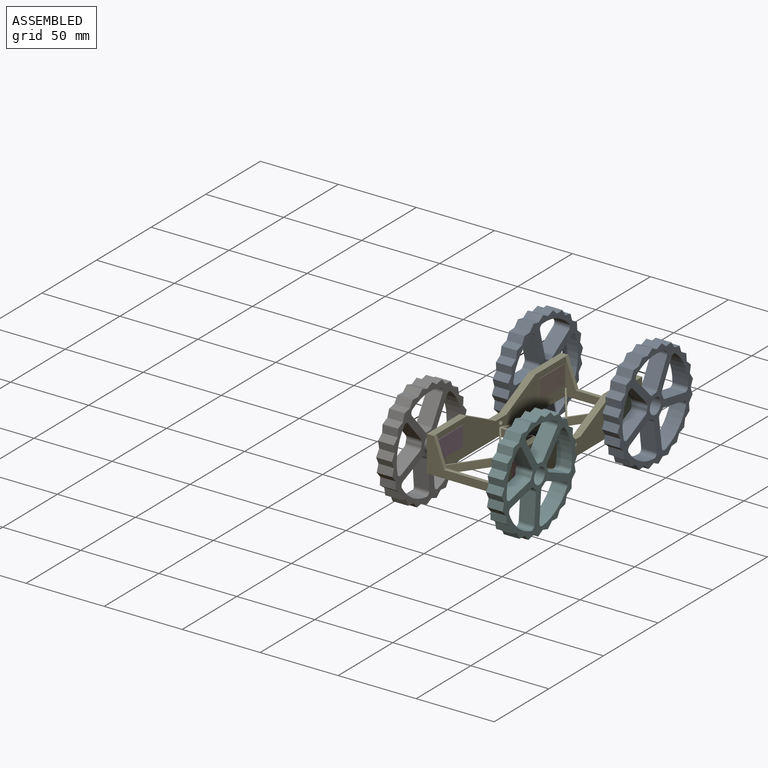
[diagram: assembled view]
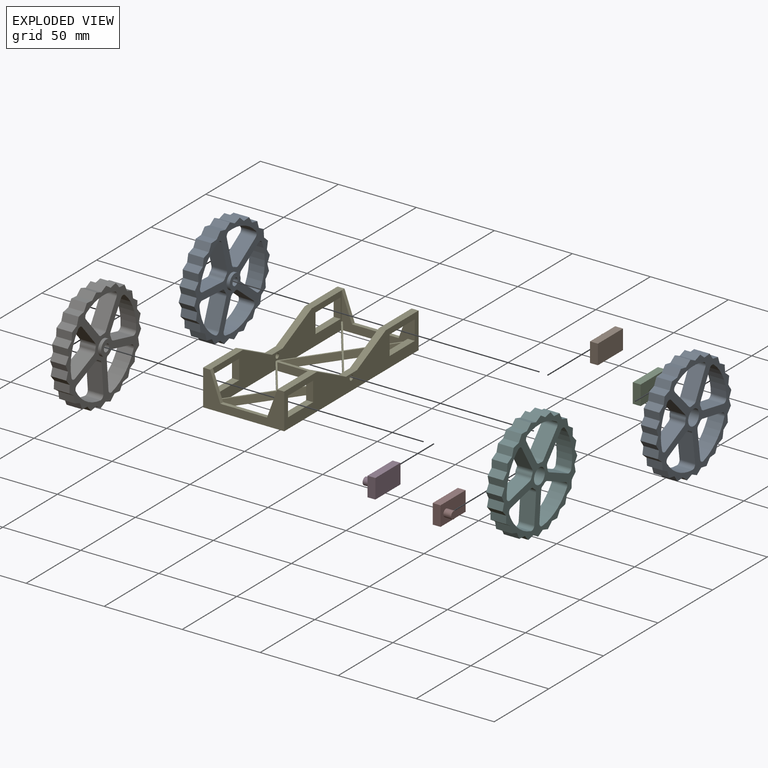
[diagram: exploded view]
GUIDED TOUR — MATED ASSEMBLY (Onshape document dd49ce1f2e0f4061e6333774, AutoMate assembly dd49ce1f2e0f4061e6333774_93a386ab2157e63abde8ae12_60231f938f92a8a16c96d09b_default)

This assembly has 9 components, labeled P0..P8 below (a component is one placed occurrence of a part; the same part can appear more than once), held together by 8 mates. A mate is a constraint between two components; its type names the relative motion it leaves free:
  FASTENED — locks the two components together rigidly (no relative motion),
  REVOLUTE — leaves rotation about the listed axis free (a hinge).
Axis/direction vectors are unit vectors and 'through' points are millimeter coordinates, both in the assembly's world frame.

MATES
  1. FASTENED "Fastened 4": P3 <-> P4, direction (0.000, -1.000, 0.000) through (-23.25, -57.53, 15.53) mm
  2. FASTENED "Fastened 1": P2 <-> P4, direction (0.000, 1.000, 0.000) through (24.25, 58.47, 15.53) mm
  3. REVOLUTE "Revolute 1": P0 <-> P2, axis (-1.000, 0.000, 0.000) through (31.75, 53.47, 15.53) mm
  4. REVOLUTE "Revolute 3": P6 <-> P3, axis (-1.000, 0.000, 0.000) through (-30.75, -52.53, 15.53) mm
  5. FASTENED "Fastened 3": P7 <-> P4, direction (0.000, -1.000, 0.000) through (24.25, -57.53, 15.53) mm
  6. REVOLUTE "Revolute 4": P8 <-> P1, axis (1.000, 0.000, 0.000) through (-30.75, 53.47, 15.53) mm
  7. FASTENED "Fastened 2": P1 <-> P4, direction (0.000, 1.000, 0.000) through (-23.25, 58.47, 15.53) mm
  8. REVOLUTE "Revolute 2": P5 <-> P7, axis (-1.000, 0.000, 0.000) through (31.75, -52.53, 15.53) mm

ASSEMBLY ORDER
  1. P5 — the base component [order verified]
  2. P0 [order verified]
  3. P4 [order verified]
  4. P7 [order verified]
  5. P2 [order verified]
  6. P3 [order verified]
  7. P1 [order verified]
  8. P6 [order verified]
  9. P8 [order verified]
Order-tag legend:
  [order verified] — this step's position reverses a verified removal order: the component was checked to insert without passing through the ones already placed.

Of the 9 components, 9 carry the full construction recipe — the FeatureScript program that regenerates the part's solid from scratch; the rest are supplied as boundary geometry only.
Each toured component is shown spotlighted twice — in the assembled view, then in the exploded view, where a leader line traces a displaced component back to its assembled socket (saturated green if recipe-attached, orange if geometry-only; every other component desaturated gray) — followed by its recipe or geometry summary and the mates that hold it.
NOTE — this tour is split across 2 documents so each fits a 32k-token context. This is document 1: the component sections continue in the remaining 1 document, each repeating the header above.
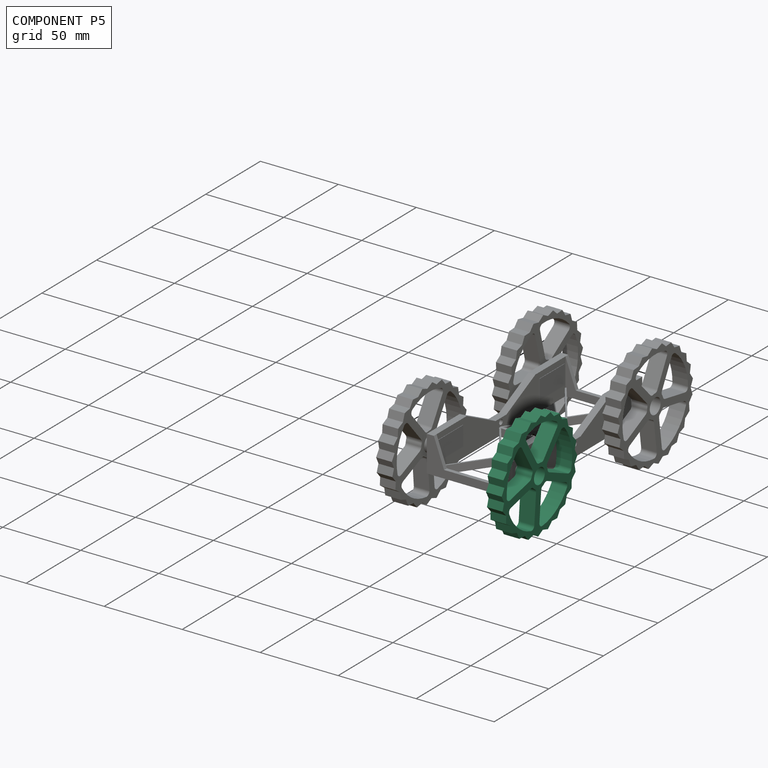
[diagram: component P5 — assembled]
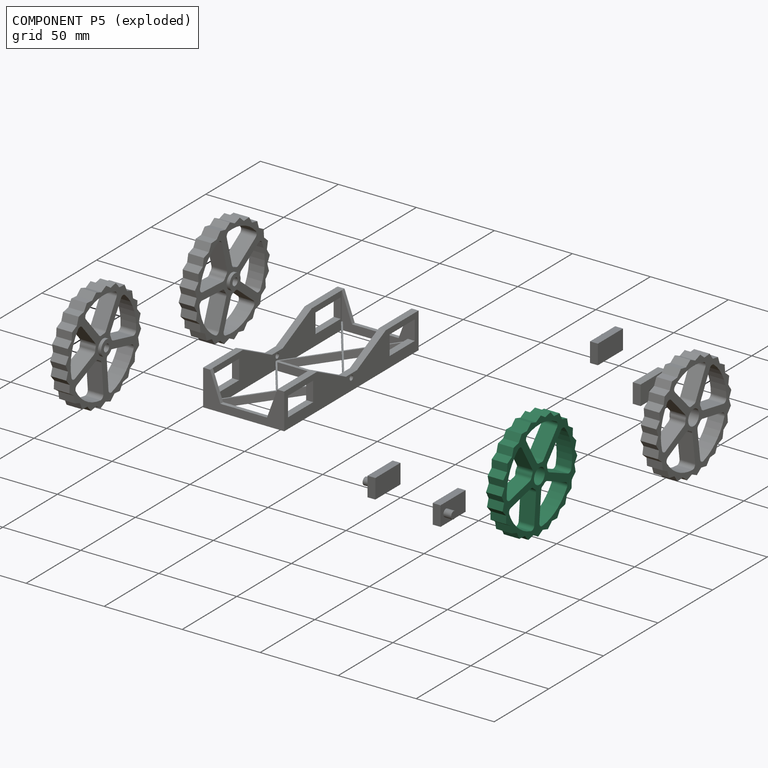
[diagram: component P5 — exploded]
COMPONENT P5 — same part as P0 (CADFS 00729824); its construction recipe is shown at P0.
Held by: REVOLUTE mate "Revolute 2" to P7.
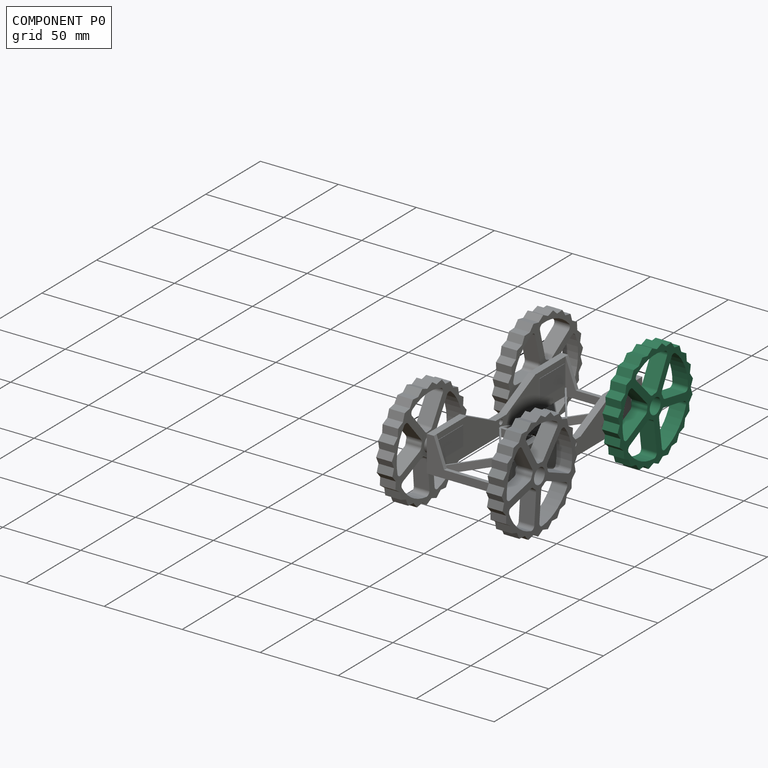
[diagram: component P0 — assembled]
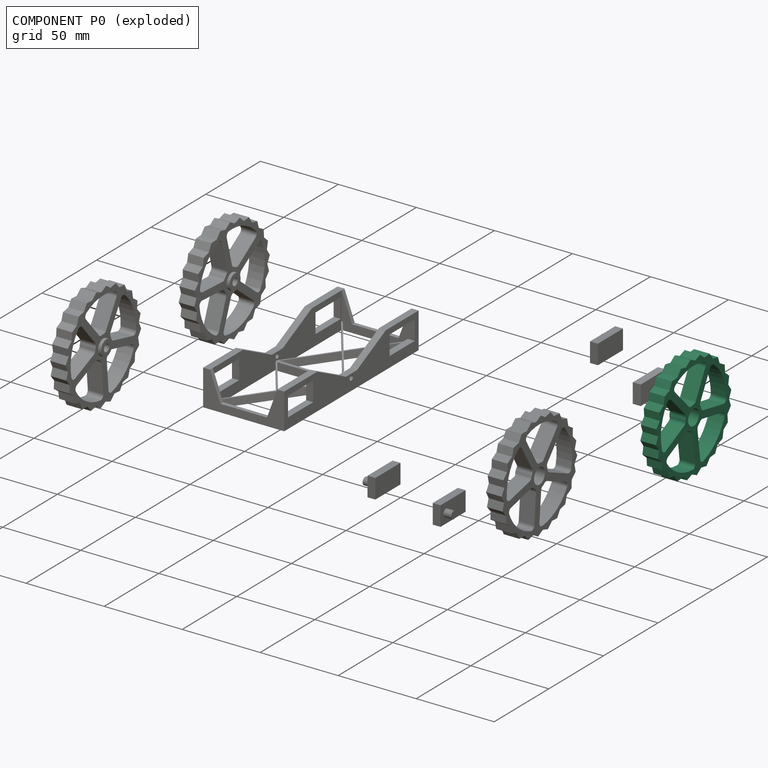
[diagram: component P0 — exploded]
COMPONENT P0 — recipe-attached (CADFS 00729824, mesh-verified: the recipe's output STEP matches this component's geometry to below the mesh-comparison resolution (tessellation chordal tolerance ~0.148 mm)).
Held by: REVOLUTE mate "Revolute 1" to P2.
Construction recipe (FeatureScript — the CAD program that rebuilds this solid; sketch coordinates are in the units given by the * unit suffixes, e.g. mm):

FeatureScript 1511;
import(path : "onshape/std/geometry.fs", version : "1511.0");
import(path : "onshape/std/common.fs", version : "1511.0");
const mm = millimeter;
const VERTEX = EntityType.VERTEX;
const EDGE = EntityType.EDGE;
const FACE = EntityType.FACE;
const BODY = EntityType.BODY;
function v(x, y){return vector(x, y);}
function OD(order){return orderDisambiguation(order);}
function OSD(set){return originalSetDisambiguation(set);}
function TD(topology){return topologyDisambiguation(topology);}
function TDD(query){return trueDependencyDisambiguation(query);}
function sQuery(a, b, c) {return sketchEntityQuery(a, b, c);}

annotation { "Feature Type Name" : "Feature", "Feature Type Description" : "" }
export const myFeature = defineFeature(function(context is Context, id is Id, definition is map)
    precondition{}
    {
        {
            var Q0;
            Q0=qCreatedBy(makeId("Top.planeOp"),FACE);
            var sketch = newSketch(context, id + "F0", { "sketchPlane" : qUnion([Q0])});
            skCircle(sketch, "E0", {"center": v(0, 0) * mm, "radius": 30 * mm});
            skCircle(sketch, "E1", {"center": v(0, 0) * mm, "radius": 2.35 * mm});
            skCircle(sketch, "E2.cCircle", {"center": v(0, 0) * mm, "radius": 30 * mm, "construction": true});
            skLineSegment(sketch, "E2.0", {"start": v(-17.32, 30) * mm, "end": v(17.32, 30) * mm});
            skLineSegment(sketch, "E2.1", {"start": v(17.32, 30) * mm, "end": v(34.64, 0) * mm});
            skLineSegment(sketch, "E2.2", {"start": v(34.64, 0) * mm, "end": v(17.32, -30) * mm});
            skLineSegment(sketch, "E2.3", {"start": v(17.32, -30) * mm, "end": v(-17.32, -30) * mm});
            skLineSegment(sketch, "E2.4", {"start": v(-17.32, -30) * mm, "end": v(-34.64, 0) * mm});
            skLineSegment(sketch, "E2.5", {"start": v(-34.64, 0) * mm, "end": v(-17.32, 30) * mm});
            skPoint(sketch, "E2.0.midPoint", {"position": v(0, 30) * mm});
            skLineSegment(sketch, "E3", {"start": v(0, 0) * mm, "end": v(25.98, 15) * mm, "construction": true});
            skLineSegment(sketch, "E4.0", {"start": v(30, 17.32) * mm, "end": v(30, -17.32) * mm});
            skLineSegment(sketch, "E4.1", {"start": v(30, -17.32) * mm, "end": v(0, -34.64) * mm});
            skLineSegment(sketch, "E4.2", {"start": v(0, -34.64) * mm, "end": v(-30, -17.32) * mm});
            skLineSegment(sketch, "E4.3", {"start": v(-30, -17.32) * mm, "end": v(-30, 17.32) * mm});
            skLineSegment(sketch, "E4.4", {"start": v(-30, 17.32) * mm, "end": v(0, 34.64) * mm});
            skLineSegment(sketch, "E4.5", {"start": v(0, 34.64) * mm, "end": v(30, 17.32) * mm});
            skPoint(sketch, "E4.0.midPoint", {"position": v(30, 0) * mm});
            skLineSegment(sketch, "E5", {"start": v(0, 0) * mm, "end": v(21.96, 21.96) * mm, "construction": true});
            skLineSegment(sketch, "E6.0", {"start": v(8.97, 33.46) * mm, "end": v(33.46, 8.97) * mm});
            skLineSegment(sketch, "E6.1", {"start": v(33.46, 8.97) * mm, "end": v(24.5, -24.5) * mm});
            skLineSegment(sketch, "E6.2", {"start": v(24.5, -24.5) * mm, "end": v(-8.97, -33.46) * mm});
            skLineSegment(sketch, "E6.3", {"start": v(-8.97, -33.46) * mm, "end": v(-33.46, -8.97) * mm});
            skLineSegment(sketch, "E6.4", {"start": v(-33.46, -8.97) * mm, "end": v(-24.5, 24.5) * mm});
            skLineSegment(sketch, "E6.5", {"start": v(-24.5, 24.5) * mm, "end": v(8.97, 33.46) * mm});
            skPoint(sketch, "E6.0.midPoint", {"position": v(21.21, 21.21) * mm});
            skLineSegment(sketch, "E7", {"start": v(0, 0) * mm, "end": v(30, 8.04) * mm, "construction": true});
            skLineSegment(sketch, "E8.0", {"start": v(24.5, 24.5) * mm, "end": v(33.46, -8.97) * mm});
            skLineSegment(sketch, "E8.1", {"start": v(33.46, -8.97) * mm, "end": v(8.97, -33.46) * mm});
            skLineSegment(sketch, "E8.2", {"start": v(8.97, -33.46) * mm, "end": v(-24.5, -24.5) * mm});
            skLineSegment(sketch, "E8.3", {"start": v(-24.5, -24.5) * mm, "end": v(-33.46, 8.97) * mm});
            skLineSegment(sketch, "E8.4", {"start": v(-33.46, 8.97) * mm, "end": v(-8.97, 33.46) * mm});
            skLineSegment(sketch, "E8.5", {"start": v(-8.97, 33.46) * mm, "end": v(24.5, 24.5) * mm});
            skPoint(sketch, "E8.0.midPoint", {"position": v(28.98, 7.76) * mm});
            skLineSegment(sketch, "E9", {"start": v(-25, 0) * mm, "end": v(22.68, 0) * mm, "construction": true});
            skLineSegment(sketch, "E10", {"start": v(-2.35, 0) * mm, "end": v(-2.35, 29.9) * mm});
            skLineSegment(sketch, "E11", {"start": v(2.35, 0) * mm, "end": v(2.35, 29.9) * mm});
            skLineSegment(sketch, "E12.1.0", {"start": v(0.73, 2.23) * mm, "end": v(-27.72, 11.48) * mm});
            skLineSegment(sketch, "E12.1.1", {"start": v(-0.73, -2.23) * mm, "end": v(-29.17, 7) * mm});
            skLineSegment(sketch, "E12.2.0", {"start": v(-1.9, 1.38) * mm, "end": v(-19.48, -22.81) * mm});
            skLineSegment(sketch, "E12.2.1", {"start": v(1.9, -1.38) * mm, "end": v(-15.68, -25.58) * mm});
            skLineSegment(sketch, "E12.3.0", {"start": v(-1.9, -1.38) * mm, "end": v(15.68, -25.58) * mm});
            skLineSegment(sketch, "E12.3.1", {"start": v(1.9, 1.38) * mm, "end": v(19.48, -22.81) * mm});
            skLineSegment(sketch, "E12.4.0", {"start": v(0.73, -2.23) * mm, "end": v(29.17, 7) * mm});
            skLineSegment(sketch, "E12.4.1", {"start": v(-0.73, 2.23) * mm, "end": v(27.72, 11.48) * mm});
            skCircle(sketch, "E13", {"center": v(0, 0) * mm, "radius": 7.5 * mm});
            skCircle(sketch, "E14", {"center": v(0, 0) * mm, "radius": 1 * mm});
            skSolve(sketch);
        }
        {
            var Q0;
            {var subQ0=sQuery(id+"F0.wireOp",EDGE,"E12.1.0");var subQ1=sQuery(id+"F0.wireOp",EDGE,"E0");var subQ2=makeQuery(id+"F0.imprint","INTERSECT",VERTEX,{"derivedFrom":[subQ1,subQ0]});Q0=makeQuery(id+"F0.imprint","IMPRINT",FACE,{"disambiguationData":[TD([[makeQuery(id+"F0.imprint","IMPRINT",EDGE,{"disambiguationData":[TD([[subQ2,-1.0]])],"derivedFrom":subQ1}),1.0]])]});}
            var Q1;
            {var subQ0=sQuery(id+"F0.wireOp",EDGE,"E12.2.0");var subQ1=sQuery(id+"F0.wireOp",EDGE,"E10");var subQ2=makeQuery(id+"F0.imprint","INTERSECT",VERTEX,{"derivedFrom":[subQ1,subQ0]});Q1=makeQuery(id+"F0.imprint","IMPRINT",FACE,{"disambiguationData":[TD([[makeQuery(id+"F0.imprint","IMPRINT",EDGE,{"disambiguationData":[TD([[subQ2,-1.0]])],"derivedFrom":subQ1}),1.0]])]});}
            var Q2;
            Q2=makeQuery(id+"F0.imprint","IMPRINT",FACE,{"disambiguationData":[TD([[makeQuery(id+"F0.imprint","IMPRINT",EDGE,{"derivedFrom":sQuery(id+"F0.wireOp",EDGE,"E14")}),-1.0]])]});
            var Q3;
            {var subQ0=sQuery(id+"F0.wireOp",EDGE,"E12.1.0");var subQ1=sQuery(id+"F0.wireOp",EDGE,"E10");var subQ2=makeQuery(id+"F0.imprint","INTERSECT",VERTEX,{"derivedFrom":[subQ1,subQ0]});Q3=makeQuery(id+"F0.imprint","IMPRINT",FACE,{"disambiguationData":[TD([[makeQuery(id+"F0.imprint","IMPRINT",EDGE,{"disambiguationData":[TD([[subQ2,-1.0]])],"derivedFrom":subQ1}),1.0]])]});}
            var Q4;
            {var subQ0=sQuery(id+"F0.wireOp",EDGE,"E12.1.0");var subQ1=sQuery(id+"F0.wireOp",EDGE,"E10");var subQ2=makeQuery(id+"F0.imprint","INTERSECT",VERTEX,{"derivedFrom":[subQ1,subQ0]});Q4=makeQuery(id+"F0.imprint","IMPRINT",FACE,{"disambiguationData":[TD([[makeQuery(id+"F0.imprint","IMPRINT",EDGE,{"disambiguationData":[TD([[subQ2,-1.0]])],"derivedFrom":subQ1}),-1.0]])]});}
            var Q5;
            {var subQ0=sQuery(id+"F0.wireOp",EDGE,"E12.4.0");var subQ1=sQuery(id+"F0.wireOp",EDGE,"E12.3.1");var subQ2=makeQuery(id+"F0.imprint","INTERSECT",VERTEX,{"derivedFrom":[subQ1,subQ0]});Q5=makeQuery(id+"F0.imprint","IMPRINT",FACE,{"disambiguationData":[TD([[makeQuery(id+"F0.imprint","IMPRINT",EDGE,{"disambiguationData":[TD([[subQ2,-1.0]])],"derivedFrom":subQ1}),1.0]])]});}
            var Q6;
            {var subQ0=sQuery(id+"F0.wireOp",EDGE,"E12.3.0");var subQ1=sQuery(id+"F0.wireOp",EDGE,"E12.1.1");var subQ2=makeQuery(id+"F0.imprint","INTERSECT",VERTEX,{"derivedFrom":[subQ1,subQ0]});Q6=makeQuery(id+"F0.imprint","IMPRINT",FACE,{"disambiguationData":[TD([[makeQuery(id+"F0.imprint","IMPRINT",EDGE,{"disambiguationData":[TD([[subQ2,-1.0]])],"derivedFrom":subQ1}),1.0]])]});}
            var Q7;
            {var subQ0=sQuery(id+"F0.wireOp",EDGE,"E12.2.0");var subQ1=sQuery(id+"F0.wireOp",EDGE,"E12.1.1");var subQ2=makeQuery(id+"F0.imprint","INTERSECT",VERTEX,{"derivedFrom":[subQ1,subQ0]});Q7=makeQuery(id+"F0.imprint","IMPRINT",FACE,{"disambiguationData":[TD([[makeQuery(id+"F0.imprint","IMPRINT",EDGE,{"disambiguationData":[TD([[subQ2,-1.0]])],"derivedFrom":subQ1}),1.0]])]});}
            var Q8;
            {var subQ1=sQuery(id+"F0.wireOp",EDGE,"E1");var subQ5=sQuery(id+"F0.wireOp",EDGE,"E12.1.0");var subQ6=makeQuery(id+"F0.imprint","INTERSECT",VERTEX,{"derivedFrom":[subQ1,subQ5]});Q8=makeQuery(id+"F0.imprint","IMPRINT",FACE,{"disambiguationData":[TD([[makeQuery(id+"F0.imprint","IMPRINT",EDGE,{"disambiguationData":[TD([[subQ6,1.0]])],"derivedFrom":subQ1}),-1.0]])]});}
            var Q9;
            {var subQ1=sQuery(id+"F0.wireOp",EDGE,"E11");var subQ5=sQuery(id+"F0.wireOp",EDGE,"E12.3.1");var subQ6=makeQuery(id+"F0.imprint","INTERSECT",VERTEX,{"derivedFrom":[subQ1,subQ5]});Q9=makeQuery(id+"F0.imprint","IMPRINT",FACE,{"disambiguationData":[TD([[makeQuery(id+"F0.imprint","IMPRINT",EDGE,{"disambiguationData":[TD([[subQ6,-1.0]])],"derivedFrom":subQ1}),-1.0]])]});}
            var Q10;
            {var subQ0=sQuery(id+"F0.wireOp",EDGE,"E12.3.0");var subQ1=sQuery(id+"F0.wireOp",EDGE,"E12.2.1");var subQ2=makeQuery(id+"F0.imprint","INTERSECT",VERTEX,{"derivedFrom":[subQ1,subQ0]});Q10=makeQuery(id+"F0.imprint","IMPRINT",FACE,{"disambiguationData":[TD([[makeQuery(id+"F0.imprint","IMPRINT",EDGE,{"disambiguationData":[TD([[subQ2,-1.0]])],"derivedFrom":subQ1}),1.0]])]});}
            var Q11;
            {var subQ5=sQuery(id+"F0.wireOp",EDGE,"E12.2.0");var subQ6=sQuery(id+"F0.wireOp",EDGE,"E1");var subQ7=makeQuery(id+"F0.imprint","INTERSECT",VERTEX,{"derivedFrom":[subQ6,subQ5]});Q11=makeQuery(id+"F0.imprint","IMPRINT",FACE,{"disambiguationData":[TD([[makeQuery(id+"F0.imprint","IMPRINT",EDGE,{"disambiguationData":[TD([[subQ7,1.0]])],"derivedFrom":subQ6}),-1.0]])]});}
            var Q12;
            {var subQ1=sQuery(id+"F0.wireOp",EDGE,"E1");var subQ6=sQuery(id+"F0.wireOp",EDGE,"E11");var subQ9=makeQuery(id+"F0.imprint","INTERSECT",VERTEX,{"derivedFrom":[subQ1,subQ6]});Q12=makeQuery(id+"F0.imprint","IMPRINT",FACE,{"disambiguationData":[TD([[makeQuery(id+"F0.imprint","IMPRINT",EDGE,{"disambiguationData":[TD([[subQ9,1.0]])],"derivedFrom":subQ1}),-1.0]])]});}
            var Q13;
            {var subQ1=sQuery(id+"F0.wireOp",EDGE,"E10");var subQ5=sQuery(id+"F0.wireOp",EDGE,"E1");var subQ6=makeQuery(id+"F0.imprint","INTERSECT",VERTEX,{"derivedFrom":[subQ5,subQ1]});Q13=makeQuery(id+"F0.imprint","IMPRINT",FACE,{"disambiguationData":[TD([[makeQuery(id+"F0.imprint","IMPRINT",EDGE,{"disambiguationData":[TD([[subQ6,-1.0]])],"derivedFrom":subQ5}),-1.0]])]});}
            var Q14;
            {var subQ0=sQuery(id+"F0.wireOp",EDGE,"E12.4.0");var subQ1=sQuery(id+"F0.wireOp",EDGE,"E12.2.1");var subQ2=makeQuery(id+"F0.imprint","INTERSECT",VERTEX,{"derivedFrom":[subQ1,subQ0]});Q14=makeQuery(id+"F0.imprint","IMPRINT",FACE,{"disambiguationData":[TD([[makeQuery(id+"F0.imprint","IMPRINT",EDGE,{"disambiguationData":[TD([[subQ2,-1.0]])],"derivedFrom":subQ1}),1.0]])]});}
            var Q15;
            {var subQ0=sQuery(id+"F0.wireOp",EDGE,"E12.4.1");var subQ1=sQuery(id+"F0.wireOp",EDGE,"E11");var subQ2=makeQuery(id+"F0.imprint","INTERSECT",VERTEX,{"derivedFrom":[subQ1,subQ0]});Q15=makeQuery(id+"F0.imprint","IMPRINT",FACE,{"disambiguationData":[TD([[makeQuery(id+"F0.imprint","IMPRINT",EDGE,{"disambiguationData":[TD([[subQ2,-1.0]])],"derivedFrom":subQ1}),-1.0]])]});}
            var Q16;
            {var subQ5=sQuery(id+"F0.wireOp",EDGE,"E1");var subQ7=sQuery(id+"F0.wireOp",EDGE,"E12.1.1");var subQ8=makeQuery(id+"F0.imprint","INTERSECT",VERTEX,{"derivedFrom":[subQ5,subQ7]});Q16=makeQuery(id+"F0.imprint","IMPRINT",FACE,{"disambiguationData":[TD([[makeQuery(id+"F0.imprint","IMPRINT",EDGE,{"disambiguationData":[TD([[subQ8,-1.0]])],"derivedFrom":subQ5}),-1.0]])]});}
            var Q17;
            {var subQ0=sQuery(id+"F0.wireOp",EDGE,"E12.1.1");var subQ1=sQuery(id+"F0.wireOp",EDGE,"E1");var subQ2=makeQuery(id+"F0.imprint","INTERSECT",VERTEX,{"derivedFrom":[subQ1,subQ0]});Q17=makeQuery(id+"F0.imprint","IMPRINT",FACE,{"disambiguationData":[TD([[makeQuery(id+"F0.imprint","IMPRINT",EDGE,{"disambiguationData":[TD([[subQ2,1.0]])],"derivedFrom":subQ1}),-1.0]])]});}
            var Q18;
            {var subQ0=sQuery(id+"F0.wireOp",EDGE,"E11");var subQ1=sQuery(id+"F0.wireOp",EDGE,"E1");var subQ2=makeQuery(id+"F0.imprint","INTERSECT",VERTEX,{"derivedFrom":[subQ1,subQ0]});Q18=makeQuery(id+"F0.imprint","IMPRINT",FACE,{"disambiguationData":[TD([[makeQuery(id+"F0.imprint","IMPRINT",EDGE,{"disambiguationData":[TD([[subQ2,-1.0]])],"derivedFrom":subQ1}),-1.0]])]});}
            var Q19;
            {var subQ0=sQuery(id+"F0.wireOp",EDGE,"E10");var subQ1=sQuery(id+"F0.wireOp",EDGE,"E1");var subQ2=makeQuery(id+"F0.imprint","INTERSECT",VERTEX,{"derivedFrom":[subQ1,subQ0]});Q19=makeQuery(id+"F0.imprint","IMPRINT",FACE,{"disambiguationData":[TD([[makeQuery(id+"F0.imprint","IMPRINT",EDGE,{"disambiguationData":[TD([[subQ2,1.0]])],"derivedFrom":subQ1}),-1.0]])]});}
            var Q20;
            {var subQ0=sQuery(id+"F0.wireOp",EDGE,"E12.2.1");var subQ1=sQuery(id+"F0.wireOp",EDGE,"E1");var subQ2=makeQuery(id+"F0.imprint","INTERSECT",VERTEX,{"derivedFrom":[subQ1,subQ0]});Q20=makeQuery(id+"F0.imprint","IMPRINT",FACE,{"disambiguationData":[TD([[makeQuery(id+"F0.imprint","IMPRINT",EDGE,{"disambiguationData":[TD([[subQ2,1.0]])],"derivedFrom":subQ1}),-1.0]])]});}
            var Q21;
            {var subQ0=sQuery(id+"F0.wireOp",EDGE,"E12.1.0");var subQ1=sQuery(id+"F0.wireOp",EDGE,"E1");var subQ2=makeQuery(id+"F0.imprint","INTERSECT",VERTEX,{"derivedFrom":[subQ1,subQ0]});Q21=makeQuery(id+"F0.imprint","IMPRINT",FACE,{"disambiguationData":[TD([[makeQuery(id+"F0.imprint","IMPRINT",EDGE,{"disambiguationData":[TD([[subQ2,-1.0]])],"derivedFrom":subQ1}),-1.0]])]});}
            var Q22;
            {var subQ0=sQuery(id+"F0.wireOp",EDGE,"E12.3.0");var subQ1=sQuery(id+"F0.wireOp",EDGE,"E0");var subQ2=makeQuery(id+"F0.imprint","INTERSECT",VERTEX,{"derivedFrom":[subQ1,subQ0]});Q22=makeQuery(id+"F0.imprint","IMPRINT",FACE,{"disambiguationData":[TD([[makeQuery(id+"F0.imprint","IMPRINT",EDGE,{"disambiguationData":[TD([[subQ2,-1.0]])],"derivedFrom":subQ1}),1.0]])]});}
            var Q23;
            {var subQ0=sQuery(id+"F0.wireOp",EDGE,"E12.2.0");var subQ1=sQuery(id+"F0.wireOp",EDGE,"E0");var subQ2=makeQuery(id+"F0.imprint","INTERSECT",VERTEX,{"derivedFrom":[subQ1,subQ0]});Q23=makeQuery(id+"F0.imprint","IMPRINT",FACE,{"disambiguationData":[TD([[makeQuery(id+"F0.imprint","IMPRINT",EDGE,{"disambiguationData":[TD([[subQ2,-1.0]])],"derivedFrom":subQ1}),1.0]])]});}
            var Q24;
            {var subQ1=sQuery(id+"F0.wireOp",EDGE,"E0");var subQ5=sQuery(id+"F0.wireOp",EDGE,"E11");var subQ6=makeQuery(id+"F0.imprint","INTERSECT",VERTEX,{"derivedFrom":[subQ1,subQ5]});Q24=makeQuery(id+"F0.imprint","IMPRINT",FACE,{"disambiguationData":[TD([[makeQuery(id+"F0.imprint","IMPRINT",EDGE,{"disambiguationData":[TD([[subQ6,-1.0]])],"derivedFrom":subQ1}),1.0]])]});}
            var Q25;
            {var subQ1=sQuery(id+"F0.wireOp",EDGE,"E0");var subQ6=sQuery(id+"F0.wireOp",EDGE,"E12.4.0");var subQ7=makeQuery(id+"F0.imprint","INTERSECT",VERTEX,{"derivedFrom":[subQ1,subQ6]});Q25=makeQuery(id+"F0.imprint","IMPRINT",FACE,{"disambiguationData":[TD([[makeQuery(id+"F0.imprint","IMPRINT",EDGE,{"disambiguationData":[TD([[subQ7,-1.0]])],"derivedFrom":subQ1}),1.0]])]});}
            var Q26;
            {var subQ0=sQuery(id+"F0.wireOp",EDGE,"E6.5");var subQ1=sQuery(id+"F0.wireOp",EDGE,"E0");var subQ2=makeQuery(id+"F0.imprint","INTERSECT",VERTEX,{"derivedFrom":[subQ1,subQ0]});Q26=makeQuery(id+"F0.imprint","IMPRINT",FACE,{"disambiguationData":[TD([[makeQuery(id+"F0.imprint","IMPRINT",EDGE,{"disambiguationData":[TD([[subQ2,-1.0]])],"derivedFrom":subQ1}),-1.0]])]});}
            var Q27;
            {var subQ0=sQuery(id+"F0.wireOp",EDGE,"E2.5");var subQ1=sQuery(id+"F0.wireOp",EDGE,"E2.0");var subQ2=makeQuery(id+"F0.imprint","INTERSECT",VERTEX,{"derivedFrom":[subQ1,subQ0]});Q27=makeQuery(id+"F0.imprint","IMPRINT",FACE,{"disambiguationData":[TD([[makeQuery(id+"F0.imprint","IMPRINT",EDGE,{"disambiguationData":[TD([[subQ2,-1.0]])],"derivedFrom":subQ1}),-1.0]])]});}
            var Q28;
            {var subQ0=sQuery(id+"F0.wireOp",EDGE,"E8.4");var subQ1=sQuery(id+"F0.wireOp",EDGE,"E2.0");var subQ2=makeQuery(id+"F0.imprint","INTERSECT",VERTEX,{"derivedFrom":[subQ1,subQ0]});Q28=makeQuery(id+"F0.imprint","IMPRINT",FACE,{"disambiguationData":[TD([[makeQuery(id+"F0.imprint","IMPRINT",EDGE,{"disambiguationData":[TD([[subQ2,-1.0]])],"derivedFrom":subQ1}),-1.0]])]});}
            var Q29;
            {var subQ0=sQuery(id+"F0.wireOp",EDGE,"E4.4");var subQ1=makeQuery(id+"F0.imprint","INTERSECT",VERTEX,{"derivedFrom":[sQuery(id+"F0.wireOp",EDGE,"E0"),subQ0]});Q29=makeQuery(id+"F0.imprint","IMPRINT",FACE,{"disambiguationData":[TD([[makeQuery(id+"F0.imprint","IMPRINT",EDGE,{"disambiguationData":[TD([[subQ1,1.0]])],"derivedFrom":subQ0}),1.0]])]});}
            var Q30;
            {var subQ0=sQuery(id+"F0.wireOp",EDGE,"E8.4");var subQ1=sQuery(id+"F0.wireOp",EDGE,"E0");var subQ2=makeQuery(id+"F0.imprint","INTERSECT",VERTEX,{"derivedFrom":[subQ1,subQ0]});Q30=makeQuery(id+"F0.imprint","IMPRINT",FACE,{"disambiguationData":[TD([[makeQuery(id+"F0.imprint","IMPRINT",EDGE,{"disambiguationData":[TD([[subQ2,-1.0]])],"derivedFrom":subQ1}),-1.0]])]});}
            var Q31;
            {var subQ0=sQuery(id+"F0.wireOp",EDGE,"E8.4");var subQ1=sQuery(id+"F0.wireOp",EDGE,"E2.5");var subQ2=makeQuery(id+"F0.imprint","INTERSECT",VERTEX,{"derivedFrom":[subQ1,subQ0]});Q31=makeQuery(id+"F0.imprint","IMPRINT",FACE,{"disambiguationData":[TD([[makeQuery(id+"F0.imprint","IMPRINT",EDGE,{"disambiguationData":[TD([[subQ2,-1.0]])],"derivedFrom":subQ1}),1.0]])]});}
            var Q32;
            {var subQ0=sQuery(id+"F0.wireOp",EDGE,"E6.5");var subQ1=sQuery(id+"F0.wireOp",EDGE,"E2.5");var subQ2=makeQuery(id+"F0.imprint","INTERSECT",VERTEX,{"derivedFrom":[subQ1,subQ0]});Q32=makeQuery(id+"F0.imprint","IMPRINT",FACE,{"disambiguationData":[TD([[makeQuery(id+"F0.imprint","IMPRINT",EDGE,{"disambiguationData":[TD([[subQ2,1.0]])],"derivedFrom":subQ1}),1.0]])]});}
            var Q33;
            {var subQ0=sQuery(id+"F0.wireOp",EDGE,"E6.5");var subQ1=sQuery(id+"F0.wireOp",EDGE,"E2.5");var subQ2=makeQuery(id+"F0.imprint","INTERSECT",VERTEX,{"derivedFrom":[subQ1,subQ0]});Q33=makeQuery(id+"F0.imprint","IMPRINT",FACE,{"disambiguationData":[TD([[makeQuery(id+"F0.imprint","IMPRINT",EDGE,{"disambiguationData":[TD([[subQ2,1.0]])],"derivedFrom":subQ1}),-1.0]])]});}
            var Q34;
            {var subQ0=sQuery(id+"F0.wireOp",EDGE,"E4.3");var subQ1=sQuery(id+"F0.wireOp",EDGE,"E2.5");var subQ2=makeQuery(id+"F0.imprint","INTERSECT",VERTEX,{"derivedFrom":[subQ1,subQ0]});Q34=makeQuery(id+"F0.imprint","IMPRINT",FACE,{"disambiguationData":[TD([[makeQuery(id+"F0.imprint","IMPRINT",EDGE,{"disambiguationData":[TD([[subQ2,-1.0]])],"derivedFrom":subQ1}),1.0]])]});}
            var Q35;
            {var subQ0=sQuery(id+"F0.wireOp",EDGE,"E0");var subQ1=makeQuery(id+"F0.imprint","INTERSECT",VERTEX,{"derivedFrom":[subQ0,sQuery(id+"F0.wireOp",EDGE,"E12.1.0")]});Q35=makeQuery(id+"F0.imprint","IMPRINT",FACE,{"disambiguationData":[TD([[makeQuery(id+"F0.imprint","IMPRINT",EDGE,{"disambiguationData":[TD([[subQ1,1.0]])],"derivedFrom":subQ0}),-1.0]])]});}
            var Q36;
            {var subQ0=sQuery(id+"F0.wireOp",EDGE,"E4.4");var subQ1=sQuery(id+"F0.wireOp",EDGE,"E4.3");var subQ2=makeQuery(id+"F0.imprint","INTERSECT",VERTEX,{"derivedFrom":[subQ1,subQ0]});Q36=makeQuery(id+"F0.imprint","IMPRINT",FACE,{"disambiguationData":[TD([[makeQuery(id+"F0.imprint","IMPRINT",EDGE,{"disambiguationData":[TD([[subQ2,1.0]])],"derivedFrom":subQ1}),-1.0]])]});}
            var Q37;
            {var subQ0=sQuery(id+"F0.wireOp",EDGE,"E2.5");var subQ1=makeQuery(id+"F0.imprint","INTERSECT",VERTEX,{"derivedFrom":[sQuery(id+"F0.wireOp",EDGE,"E0"),subQ0]});Q37=makeQuery(id+"F0.imprint","IMPRINT",FACE,{"disambiguationData":[TD([[makeQuery(id+"F0.imprint","IMPRINT",EDGE,{"disambiguationData":[TD([[subQ1,1.0]])],"derivedFrom":subQ0}),1.0]])]});}
            var Q38;
            {var subQ0=sQuery(id+"F0.wireOp",EDGE,"E4.4");var subQ1=sQuery(id+"F0.wireOp",EDGE,"E0");var subQ2=makeQuery(id+"F0.imprint","INTERSECT",VERTEX,{"derivedFrom":[subQ1,subQ0]});Q38=makeQuery(id+"F0.imprint","IMPRINT",FACE,{"disambiguationData":[TD([[makeQuery(id+"F0.imprint","IMPRINT",EDGE,{"disambiguationData":[TD([[subQ2,-1.0]])],"derivedFrom":subQ1}),-1.0]])]});}
            var Q39;
            {var subQ0=sQuery(id+"F0.wireOp",EDGE,"E8.4");var subQ1=sQuery(id+"F0.wireOp",EDGE,"E2.5");var subQ2=makeQuery(id+"F0.imprint","INTERSECT",VERTEX,{"derivedFrom":[subQ1,subQ0]});Q39=makeQuery(id+"F0.imprint","IMPRINT",FACE,{"disambiguationData":[TD([[makeQuery(id+"F0.imprint","IMPRINT",EDGE,{"disambiguationData":[TD([[subQ2,-1.0]])],"derivedFrom":subQ1}),-1.0]])]});}
            var Q40;
            {var subQ0=sQuery(id+"F0.wireOp",EDGE,"E8.3");var subQ1=sQuery(id+"F0.wireOp",EDGE,"E2.5");var subQ2=makeQuery(id+"F0.imprint","INTERSECT",VERTEX,{"derivedFrom":[subQ1,subQ0]});Q40=makeQuery(id+"F0.imprint","IMPRINT",FACE,{"disambiguationData":[TD([[makeQuery(id+"F0.imprint","IMPRINT",EDGE,{"disambiguationData":[TD([[subQ2,-1.0]])],"derivedFrom":subQ1}),-1.0]])]});}
            var Q41;
            {var subQ0=sQuery(id+"F0.wireOp",EDGE,"E4.3");var subQ1=sQuery(id+"F0.wireOp",EDGE,"E4.2");var subQ2=makeQuery(id+"F0.imprint","INTERSECT",VERTEX,{"derivedFrom":[subQ1,subQ0]});Q41=makeQuery(id+"F0.imprint","IMPRINT",FACE,{"disambiguationData":[TD([[makeQuery(id+"F0.imprint","IMPRINT",EDGE,{"disambiguationData":[TD([[subQ2,1.0]])],"derivedFrom":subQ1}),-1.0]])]});}
            var Q42;
            {var subQ0=sQuery(id+"F0.wireOp",EDGE,"E8.3");var subQ1=sQuery(id+"F0.wireOp",EDGE,"E2.4");var subQ2=makeQuery(id+"F0.imprint","INTERSECT",VERTEX,{"derivedFrom":[subQ1,subQ0]});Q42=makeQuery(id+"F0.imprint","IMPRINT",FACE,{"disambiguationData":[TD([[makeQuery(id+"F0.imprint","IMPRINT",EDGE,{"disambiguationData":[TD([[subQ2,-1.0]])],"derivedFrom":subQ1}),1.0]])]});}
            var Q43;
            {var subQ0=sQuery(id+"F0.wireOp",EDGE,"E6.4");var subQ1=sQuery(id+"F0.wireOp",EDGE,"E2.4");var subQ2=makeQuery(id+"F0.imprint","INTERSECT",VERTEX,{"derivedFrom":[subQ1,subQ0]});Q43=makeQuery(id+"F0.imprint","IMPRINT",FACE,{"disambiguationData":[TD([[makeQuery(id+"F0.imprint","IMPRINT",EDGE,{"disambiguationData":[TD([[subQ2,1.0]])],"derivedFrom":subQ1}),1.0]])]});}
            var Q44;
            {var subQ0=sQuery(id+"F0.wireOp",EDGE,"E4.3");var subQ1=makeQuery(id+"F0.imprint","INTERSECT",VERTEX,{"derivedFrom":[sQuery(id+"F0.wireOp",EDGE,"E0"),subQ0]});Q44=makeQuery(id+"F0.imprint","IMPRINT",FACE,{"disambiguationData":[TD([[makeQuery(id+"F0.imprint","IMPRINT",EDGE,{"disambiguationData":[TD([[subQ1,1.0]])],"derivedFrom":subQ0}),1.0]])]});}
            var Q45;
            {var subQ0=sQuery(id+"F0.wireOp",EDGE,"E8.3");var subQ1=sQuery(id+"F0.wireOp",EDGE,"E2.4");var subQ2=makeQuery(id+"F0.imprint","INTERSECT",VERTEX,{"derivedFrom":[subQ1,subQ0]});Q45=makeQuery(id+"F0.imprint","IMPRINT",FACE,{"disambiguationData":[TD([[makeQuery(id+"F0.imprint","IMPRINT",EDGE,{"disambiguationData":[TD([[subQ2,-1.0]])],"derivedFrom":subQ1}),-1.0]])]});}
            var Q46;
            {var subQ0=sQuery(id+"F0.wireOp",EDGE,"E2.5");var subQ1=sQuery(id+"F0.wireOp",EDGE,"E2.4");var subQ2=makeQuery(id+"F0.imprint","INTERSECT",VERTEX,{"derivedFrom":[subQ1,subQ0]});Q46=makeQuery(id+"F0.imprint","IMPRINT",FACE,{"disambiguationData":[TD([[makeQuery(id+"F0.imprint","IMPRINT",EDGE,{"disambiguationData":[TD([[subQ2,1.0]])],"derivedFrom":subQ1}),-1.0]])]});}
            var Q47;
            {var subQ0=sQuery(id+"F0.wireOp",EDGE,"E8.3");var subQ1=sQuery(id+"F0.wireOp",EDGE,"E0");var subQ2=makeQuery(id+"F0.imprint","INTERSECT",VERTEX,{"derivedFrom":[subQ1,subQ0]});Q47=makeQuery(id+"F0.imprint","IMPRINT",FACE,{"disambiguationData":[TD([[makeQuery(id+"F0.imprint","IMPRINT",EDGE,{"disambiguationData":[TD([[subQ2,-1.0]])],"derivedFrom":subQ1}),-1.0]])]});}
            var Q48;
            {var subQ0=sQuery(id+"F0.wireOp",EDGE,"E6.4");var subQ1=sQuery(id+"F0.wireOp",EDGE,"E2.4");var subQ2=makeQuery(id+"F0.imprint","INTERSECT",VERTEX,{"derivedFrom":[subQ1,subQ0]});Q48=makeQuery(id+"F0.imprint","IMPRINT",FACE,{"disambiguationData":[TD([[makeQuery(id+"F0.imprint","IMPRINT",EDGE,{"disambiguationData":[TD([[subQ2,1.0]])],"derivedFrom":subQ1}),-1.0]])]});}
            var Q49;
            {var subQ0=sQuery(id+"F0.wireOp",EDGE,"E4.3");var subQ1=sQuery(id+"F0.wireOp",EDGE,"E0");var subQ2=makeQuery(id+"F0.imprint","INTERSECT",VERTEX,{"derivedFrom":[subQ1,subQ0]});Q49=makeQuery(id+"F0.imprint","IMPRINT",FACE,{"disambiguationData":[TD([[makeQuery(id+"F0.imprint","IMPRINT",EDGE,{"disambiguationData":[TD([[subQ2,-1.0]])],"derivedFrom":subQ1}),-1.0]])]});}
            var Q50;
            {var subQ0=sQuery(id+"F0.wireOp",EDGE,"E8.3");var subQ1=sQuery(id+"F0.wireOp",EDGE,"E2.5");var subQ2=makeQuery(id+"F0.imprint","INTERSECT",VERTEX,{"derivedFrom":[subQ1,subQ0]});Q50=makeQuery(id+"F0.imprint","IMPRINT",FACE,{"disambiguationData":[TD([[makeQuery(id+"F0.imprint","IMPRINT",EDGE,{"disambiguationData":[TD([[subQ2,-1.0]])],"derivedFrom":subQ1}),1.0]])]});}
            var Q51;
            {var subQ0=sQuery(id+"F0.wireOp",EDGE,"E0");var subQ1=makeQuery(id+"F0.imprint","INTERSECT",VERTEX,{"derivedFrom":[subQ0,sQuery(id+"F0.wireOp",EDGE,"E12.1.1")]});Q51=makeQuery(id+"F0.imprint","IMPRINT",FACE,{"disambiguationData":[TD([[makeQuery(id+"F0.imprint","IMPRINT",EDGE,{"disambiguationData":[TD([[subQ1,1.0]])],"derivedFrom":subQ0}),-1.0]])]});}
            var Q52;
            {var subQ0=sQuery(id+"F0.wireOp",EDGE,"E4.3");var subQ1=sQuery(id+"F0.wireOp",EDGE,"E2.5");var subQ2=makeQuery(id+"F0.imprint","INTERSECT",VERTEX,{"derivedFrom":[subQ1,subQ0]});Q52=makeQuery(id+"F0.imprint","IMPRINT",FACE,{"disambiguationData":[TD([[makeQuery(id+"F0.imprint","IMPRINT",EDGE,{"disambiguationData":[TD([[subQ2,-1.0]])],"derivedFrom":subQ1}),-1.0]])]});}
            var Q53;
            {var subQ0=sQuery(id+"F0.wireOp",EDGE,"E6.3");var subQ1=sQuery(id+"F0.wireOp",EDGE,"E2.3");var subQ2=makeQuery(id+"F0.imprint","INTERSECT",VERTEX,{"derivedFrom":[subQ1,subQ0]});Q53=makeQuery(id+"F0.imprint","IMPRINT",FACE,{"disambiguationData":[TD([[makeQuery(id+"F0.imprint","IMPRINT",EDGE,{"disambiguationData":[TD([[subQ2,1.0]])],"derivedFrom":subQ1}),-1.0]])]});}
            var Q54;
            {var subQ0=sQuery(id+"F0.wireOp",EDGE,"E0");var subQ7=makeQuery(id+"F0.imprint","INTERSECT",VERTEX,{"derivedFrom":[subQ0,sQuery(id+"F0.wireOp",EDGE,"E12.2.0")]});Q54=makeQuery(id+"F0.imprint","IMPRINT",FACE,{"disambiguationData":[TD([[makeQuery(id+"F0.imprint","IMPRINT",EDGE,{"disambiguationData":[TD([[subQ7,1.0]])],"derivedFrom":subQ0}),-1.0]])]});}
            var Q55;
            {var subQ0=sQuery(id+"F0.wireOp",EDGE,"E4.2");var subQ1=sQuery(id+"F0.wireOp",EDGE,"E2.4");var subQ2=makeQuery(id+"F0.imprint","INTERSECT",VERTEX,{"derivedFrom":[subQ1,subQ0]});Q55=makeQuery(id+"F0.imprint","IMPRINT",FACE,{"disambiguationData":[TD([[makeQuery(id+"F0.imprint","IMPRINT",EDGE,{"disambiguationData":[TD([[subQ2,-1.0]])],"derivedFrom":subQ1}),-1.0]])]});}
            var Q56;
            {var subQ0=sQuery(id+"F0.wireOp",EDGE,"E8.2");var subQ1=sQuery(id+"F0.wireOp",EDGE,"E2.3");var subQ2=makeQuery(id+"F0.imprint","INTERSECT",VERTEX,{"derivedFrom":[subQ1,subQ0]});Q56=makeQuery(id+"F0.imprint","IMPRINT",FACE,{"disambiguationData":[TD([[makeQuery(id+"F0.imprint","IMPRINT",EDGE,{"disambiguationData":[TD([[subQ2,-1.0]])],"derivedFrom":subQ1}),-1.0]])]});}
            var Q57;
            {var subQ0=sQuery(id+"F0.wireOp",EDGE,"E2.4");var subQ1=sQuery(id+"F0.wireOp",EDGE,"E2.3");var subQ2=makeQuery(id+"F0.imprint","INTERSECT",VERTEX,{"derivedFrom":[subQ1,subQ0]});Q57=makeQuery(id+"F0.imprint","IMPRINT",FACE,{"disambiguationData":[TD([[makeQuery(id+"F0.imprint","IMPRINT",EDGE,{"disambiguationData":[TD([[subQ2,1.0]])],"derivedFrom":subQ1}),-1.0]])]});}
            var Q58;
            {var subQ0=sQuery(id+"F0.wireOp",EDGE,"E8.2");var subQ1=sQuery(id+"F0.wireOp",EDGE,"E2.4");var subQ2=makeQuery(id+"F0.imprint","INTERSECT",VERTEX,{"derivedFrom":[subQ1,subQ0]});Q58=makeQuery(id+"F0.imprint","IMPRINT",FACE,{"disambiguationData":[TD([[makeQuery(id+"F0.imprint","IMPRINT",EDGE,{"disambiguationData":[TD([[subQ2,-1.0]])],"derivedFrom":subQ1}),1.0]])]});}
            var Q59;
            {var subQ0=sQuery(id+"F0.wireOp",EDGE,"E6.3");var subQ1=sQuery(id+"F0.wireOp",EDGE,"E2.3");var subQ2=makeQuery(id+"F0.imprint","INTERSECT",VERTEX,{"derivedFrom":[subQ1,subQ0]});Q59=makeQuery(id+"F0.imprint","IMPRINT",FACE,{"disambiguationData":[TD([[makeQuery(id+"F0.imprint","IMPRINT",EDGE,{"disambiguationData":[TD([[subQ2,1.0]])],"derivedFrom":subQ1}),1.0]])]});}
            var Q60;
            {var subQ0=sQuery(id+"F0.wireOp",EDGE,"E8.2");var subQ1=sQuery(id+"F0.wireOp",EDGE,"E2.4");var subQ2=makeQuery(id+"F0.imprint","INTERSECT",VERTEX,{"derivedFrom":[subQ1,subQ0]});Q60=makeQuery(id+"F0.imprint","IMPRINT",FACE,{"disambiguationData":[TD([[makeQuery(id+"F0.imprint","IMPRINT",EDGE,{"disambiguationData":[TD([[subQ2,-1.0]])],"derivedFrom":subQ1}),-1.0]])]});}
            var Q61;
            {var subQ0=sQuery(id+"F0.wireOp",EDGE,"E4.2");var subQ1=makeQuery(id+"F0.imprint","INTERSECT",VERTEX,{"derivedFrom":[sQuery(id+"F0.wireOp",EDGE,"E0"),subQ0]});Q61=makeQuery(id+"F0.imprint","IMPRINT",FACE,{"disambiguationData":[TD([[makeQuery(id+"F0.imprint","IMPRINT",EDGE,{"disambiguationData":[TD([[subQ1,1.0]])],"derivedFrom":subQ0}),1.0]])]});}
            var Q62;
            {var subQ0=sQuery(id+"F0.wireOp",EDGE,"E2.4");var subQ1=sQuery(id+"F0.wireOp",EDGE,"E0");var subQ2=makeQuery(id+"F0.imprint","INTERSECT",VERTEX,{"derivedFrom":[subQ1,subQ0]});Q62=makeQuery(id+"F0.imprint","IMPRINT",FACE,{"disambiguationData":[TD([[makeQuery(id+"F0.imprint","IMPRINT",EDGE,{"disambiguationData":[TD([[subQ2,-1.0]])],"derivedFrom":subQ1}),-1.0]])]});}
            var Q63;
            {var subQ0=sQuery(id+"F0.wireOp",EDGE,"E2.4");var subQ1=makeQuery(id+"F0.imprint","INTERSECT",VERTEX,{"derivedFrom":[sQuery(id+"F0.wireOp",EDGE,"E0"),subQ0]});Q63=makeQuery(id+"F0.imprint","IMPRINT",FACE,{"disambiguationData":[TD([[makeQuery(id+"F0.imprint","IMPRINT",EDGE,{"disambiguationData":[TD([[subQ1,1.0]])],"derivedFrom":subQ0}),1.0]])]});}
            var Q64;
            {var subQ0=sQuery(id+"F0.wireOp",EDGE,"E4.2");var subQ1=sQuery(id+"F0.wireOp",EDGE,"E0");var subQ2=makeQuery(id+"F0.imprint","INTERSECT",VERTEX,{"derivedFrom":[subQ1,subQ0]});Q64=makeQuery(id+"F0.imprint","IMPRINT",FACE,{"disambiguationData":[TD([[makeQuery(id+"F0.imprint","IMPRINT",EDGE,{"disambiguationData":[TD([[subQ2,-1.0]])],"derivedFrom":subQ1}),-1.0]])]});}
            var Q65;
            {var subQ0=sQuery(id+"F0.wireOp",EDGE,"E8.2");var subQ1=sQuery(id+"F0.wireOp",EDGE,"E2.3");var subQ2=makeQuery(id+"F0.imprint","INTERSECT",VERTEX,{"derivedFrom":[subQ1,subQ0]});Q65=makeQuery(id+"F0.imprint","IMPRINT",FACE,{"disambiguationData":[TD([[makeQuery(id+"F0.imprint","IMPRINT",EDGE,{"disambiguationData":[TD([[subQ2,-1.0]])],"derivedFrom":subQ1}),1.0]])]});}
            var Q66;
            {var subQ0=sQuery(id+"F0.wireOp",EDGE,"E4.2");var subQ1=sQuery(id+"F0.wireOp",EDGE,"E2.4");var subQ2=makeQuery(id+"F0.imprint","INTERSECT",VERTEX,{"derivedFrom":[subQ1,subQ0]});Q66=makeQuery(id+"F0.imprint","IMPRINT",FACE,{"disambiguationData":[TD([[makeQuery(id+"F0.imprint","IMPRINT",EDGE,{"disambiguationData":[TD([[subQ2,-1.0]])],"derivedFrom":subQ1}),1.0]])]});}
            var Q67;
            {var subQ0=sQuery(id+"F0.wireOp",EDGE,"E8.2");var subQ1=sQuery(id+"F0.wireOp",EDGE,"E0");var subQ2=makeQuery(id+"F0.imprint","INTERSECT",VERTEX,{"derivedFrom":[subQ1,subQ0]});Q67=makeQuery(id+"F0.imprint","IMPRINT",FACE,{"disambiguationData":[TD([[makeQuery(id+"F0.imprint","IMPRINT",EDGE,{"disambiguationData":[TD([[subQ2,-1.0]])],"derivedFrom":subQ1}),-1.0]])]});}
            var Q68;
            {var subQ0=sQuery(id+"F0.wireOp",EDGE,"E4.2");var subQ1=sQuery(id+"F0.wireOp",EDGE,"E4.1");var subQ2=makeQuery(id+"F0.imprint","INTERSECT",VERTEX,{"derivedFrom":[subQ1,subQ0]});Q68=makeQuery(id+"F0.imprint","IMPRINT",FACE,{"disambiguationData":[TD([[makeQuery(id+"F0.imprint","IMPRINT",EDGE,{"disambiguationData":[TD([[subQ2,1.0]])],"derivedFrom":subQ1}),-1.0]])]});}
            var Q69;
            {var subQ0=sQuery(id+"F0.wireOp",EDGE,"E8.1");var subQ1=sQuery(id+"F0.wireOp",EDGE,"E2.3");var subQ2=makeQuery(id+"F0.imprint","INTERSECT",VERTEX,{"derivedFrom":[subQ1,subQ0]});Q69=makeQuery(id+"F0.imprint","IMPRINT",FACE,{"disambiguationData":[TD([[makeQuery(id+"F0.imprint","IMPRINT",EDGE,{"disambiguationData":[TD([[subQ2,-1.0]])],"derivedFrom":subQ1}),-1.0]])]});}
            var Q70;
            {var subQ0=sQuery(id+"F0.wireOp",EDGE,"E4.1");var subQ1=sQuery(id+"F0.wireOp",EDGE,"E4.0");var subQ2=makeQuery(id+"F0.imprint","INTERSECT",VERTEX,{"derivedFrom":[subQ1,subQ0]});Q70=makeQuery(id+"F0.imprint","IMPRINT",FACE,{"disambiguationData":[TD([[makeQuery(id+"F0.imprint","IMPRINT",EDGE,{"disambiguationData":[TD([[subQ2,1.0]])],"derivedFrom":subQ1}),-1.0]])]});}
            var Q71;
            {var subQ0=sQuery(id+"F0.wireOp",EDGE,"E6.2");var subQ1=sQuery(id+"F0.wireOp",EDGE,"E2.2");var subQ2=makeQuery(id+"F0.imprint","INTERSECT",VERTEX,{"derivedFrom":[subQ1,subQ0]});Q71=makeQuery(id+"F0.imprint","IMPRINT",FACE,{"disambiguationData":[TD([[makeQuery(id+"F0.imprint","IMPRINT",EDGE,{"disambiguationData":[TD([[subQ2,1.0]])],"derivedFrom":subQ1}),1.0]])]});}
            var Q72;
            {var subQ0=sQuery(id+"F0.wireOp",EDGE,"E2.3");var subQ1=sQuery(id+"F0.wireOp",EDGE,"E2.2");var subQ2=makeQuery(id+"F0.imprint","INTERSECT",VERTEX,{"derivedFrom":[subQ1,subQ0]});Q72=makeQuery(id+"F0.imprint","IMPRINT",FACE,{"disambiguationData":[TD([[makeQuery(id+"F0.imprint","IMPRINT",EDGE,{"disambiguationData":[TD([[subQ2,1.0]])],"derivedFrom":subQ1}),-1.0]])]});}
            var Q73;
            {var subQ0=sQuery(id+"F0.wireOp",EDGE,"E8.1");var subQ1=sQuery(id+"F0.wireOp",EDGE,"E2.3");var subQ2=makeQuery(id+"F0.imprint","INTERSECT",VERTEX,{"derivedFrom":[subQ1,subQ0]});Q73=makeQuery(id+"F0.imprint","IMPRINT",FACE,{"disambiguationData":[TD([[makeQuery(id+"F0.imprint","IMPRINT",EDGE,{"disambiguationData":[TD([[subQ2,-1.0]])],"derivedFrom":subQ1}),1.0]])]});}
            var Q74;
            {var subQ0=sQuery(id+"F0.wireOp",EDGE,"E4.1");var subQ1=sQuery(id+"F0.wireOp",EDGE,"E2.3");var subQ2=makeQuery(id+"F0.imprint","INTERSECT",VERTEX,{"derivedFrom":[subQ1,subQ0]});Q74=makeQuery(id+"F0.imprint","IMPRINT",FACE,{"disambiguationData":[TD([[makeQuery(id+"F0.imprint","IMPRINT",EDGE,{"disambiguationData":[TD([[subQ2,-1.0]])],"derivedFrom":subQ1}),1.0]])]});}
            var Q75;
            {var subQ0=sQuery(id+"F0.wireOp",EDGE,"E6.2");var subQ1=sQuery(id+"F0.wireOp",EDGE,"E2.2");var subQ2=makeQuery(id+"F0.imprint","INTERSECT",VERTEX,{"derivedFrom":[subQ1,subQ0]});Q75=makeQuery(id+"F0.imprint","IMPRINT",FACE,{"disambiguationData":[TD([[makeQuery(id+"F0.imprint","IMPRINT",EDGE,{"disambiguationData":[TD([[subQ2,1.0]])],"derivedFrom":subQ1}),-1.0]])]});}
            var Q76;
            {var subQ0=sQuery(id+"F0.wireOp",EDGE,"E8.1");var subQ1=sQuery(id+"F0.wireOp",EDGE,"E2.2");var subQ2=makeQuery(id+"F0.imprint","INTERSECT",VERTEX,{"derivedFrom":[subQ1,subQ0]});Q76=makeQuery(id+"F0.imprint","IMPRINT",FACE,{"disambiguationData":[TD([[makeQuery(id+"F0.imprint","IMPRINT",EDGE,{"disambiguationData":[TD([[subQ2,-1.0]])],"derivedFrom":subQ1}),1.0]])]});}
            var Q77;
            {var subQ0=sQuery(id+"F0.wireOp",EDGE,"E8.1");var subQ1=sQuery(id+"F0.wireOp",EDGE,"E2.2");var subQ2=makeQuery(id+"F0.imprint","INTERSECT",VERTEX,{"derivedFrom":[subQ1,subQ0]});Q77=makeQuery(id+"F0.imprint","IMPRINT",FACE,{"disambiguationData":[TD([[makeQuery(id+"F0.imprint","IMPRINT",EDGE,{"disambiguationData":[TD([[subQ2,-1.0]])],"derivedFrom":subQ1}),-1.0]])]});}
            var Q78;
            {var subQ0=sQuery(id+"F0.wireOp",EDGE,"E4.1");var subQ1=makeQuery(id+"F0.imprint","INTERSECT",VERTEX,{"derivedFrom":[sQuery(id+"F0.wireOp",EDGE,"E0"),subQ0]});Q78=makeQuery(id+"F0.imprint","IMPRINT",FACE,{"disambiguationData":[TD([[makeQuery(id+"F0.imprint","IMPRINT",EDGE,{"disambiguationData":[TD([[subQ1,1.0]])],"derivedFrom":subQ0}),1.0]])]});}
            var Q79;
            {var subQ0=sQuery(id+"F0.wireOp",EDGE,"E4.0");var subQ1=sQuery(id+"F0.wireOp",EDGE,"E2.2");var subQ2=makeQuery(id+"F0.imprint","INTERSECT",VERTEX,{"derivedFrom":[subQ1,subQ0]});Q79=makeQuery(id+"F0.imprint","IMPRINT",FACE,{"disambiguationData":[TD([[makeQuery(id+"F0.imprint","IMPRINT",EDGE,{"disambiguationData":[TD([[subQ2,-1.0]])],"derivedFrom":subQ1}),1.0]])]});}
            var Q80;
            {var subQ0=sQuery(id+"F0.wireOp",EDGE,"E2.2");var subQ1=makeQuery(id+"F0.imprint","INTERSECT",VERTEX,{"derivedFrom":[sQuery(id+"F0.wireOp",EDGE,"E0"),subQ0]});Q80=makeQuery(id+"F0.imprint","IMPRINT",FACE,{"disambiguationData":[TD([[makeQuery(id+"F0.imprint","IMPRINT",EDGE,{"disambiguationData":[TD([[subQ1,1.0]])],"derivedFrom":subQ0}),1.0]])]});}
            var Q81;
            {var subQ0=sQuery(id+"F0.wireOp",EDGE,"E4.1");var subQ1=sQuery(id+"F0.wireOp",EDGE,"E2.3");var subQ2=makeQuery(id+"F0.imprint","INTERSECT",VERTEX,{"derivedFrom":[subQ1,subQ0]});Q81=makeQuery(id+"F0.imprint","IMPRINT",FACE,{"disambiguationData":[TD([[makeQuery(id+"F0.imprint","IMPRINT",EDGE,{"disambiguationData":[TD([[subQ2,-1.0]])],"derivedFrom":subQ1}),-1.0]])]});}
            var Q82;
            {var subQ0=sQuery(id+"F0.wireOp",EDGE,"E2.3");var subQ1=makeQuery(id+"F0.imprint","INTERSECT",VERTEX,{"derivedFrom":[sQuery(id+"F0.wireOp",EDGE,"E0"),subQ0]});Q82=makeQuery(id+"F0.imprint","IMPRINT",FACE,{"disambiguationData":[TD([[makeQuery(id+"F0.imprint","IMPRINT",EDGE,{"disambiguationData":[TD([[subQ1,1.0]])],"derivedFrom":subQ0}),1.0]])]});}
            var Q83;
            {var subQ0=sQuery(id+"F0.wireOp",EDGE,"E6.2");var subQ1=sQuery(id+"F0.wireOp",EDGE,"E0");var subQ2=makeQuery(id+"F0.imprint","INTERSECT",VERTEX,{"derivedFrom":[subQ1,subQ0]});Q83=makeQuery(id+"F0.imprint","IMPRINT",FACE,{"disambiguationData":[TD([[makeQuery(id+"F0.imprint","IMPRINT",EDGE,{"disambiguationData":[TD([[subQ2,-1.0]])],"derivedFrom":subQ1}),-1.0]])]});}
            var Q84;
            {var subQ0=sQuery(id+"F0.wireOp",EDGE,"E8.1");var subQ1=sQuery(id+"F0.wireOp",EDGE,"E0");var subQ2=makeQuery(id+"F0.imprint","INTERSECT",VERTEX,{"derivedFrom":[subQ1,subQ0]});Q84=makeQuery(id+"F0.imprint","IMPRINT",FACE,{"disambiguationData":[TD([[makeQuery(id+"F0.imprint","IMPRINT",EDGE,{"disambiguationData":[TD([[subQ2,-1.0]])],"derivedFrom":subQ1}),-1.0]])]});}
            var Q85;
            {var subQ0=sQuery(id+"F0.wireOp",EDGE,"E2.2");var subQ1=sQuery(id+"F0.wireOp",EDGE,"E0");var subQ2=makeQuery(id+"F0.imprint","INTERSECT",VERTEX,{"derivedFrom":[subQ1,subQ0]});Q85=makeQuery(id+"F0.imprint","IMPRINT",FACE,{"disambiguationData":[TD([[makeQuery(id+"F0.imprint","IMPRINT",EDGE,{"disambiguationData":[TD([[subQ2,-1.0]])],"derivedFrom":subQ1}),-1.0]])]});}
            var Q86;
            {var subQ0=sQuery(id+"F0.wireOp",EDGE,"E2.3");var subQ1=sQuery(id+"F0.wireOp",EDGE,"E0");var subQ2=makeQuery(id+"F0.imprint","INTERSECT",VERTEX,{"derivedFrom":[subQ1,subQ0]});Q86=makeQuery(id+"F0.imprint","IMPRINT",FACE,{"disambiguationData":[TD([[makeQuery(id+"F0.imprint","IMPRINT",EDGE,{"disambiguationData":[TD([[subQ2,-1.0]])],"derivedFrom":subQ1}),-1.0]])]});}
            var Q87;
            {var subQ0=sQuery(id+"F0.wireOp",EDGE,"E0");var subQ4=makeQuery(id+"F0.imprint","INTERSECT",VERTEX,{"derivedFrom":[subQ0,sQuery(id+"F0.wireOp",EDGE,"E12.3.0")]});Q87=makeQuery(id+"F0.imprint","IMPRINT",FACE,{"disambiguationData":[TD([[makeQuery(id+"F0.imprint","IMPRINT",EDGE,{"disambiguationData":[TD([[subQ4,1.0]])],"derivedFrom":subQ0}),-1.0]])]});}
            var Q88;
            {var subQ0=sQuery(id+"F0.wireOp",EDGE,"E6.1");var subQ1=sQuery(id+"F0.wireOp",EDGE,"E2.1");var subQ2=makeQuery(id+"F0.imprint","INTERSECT",VERTEX,{"derivedFrom":[subQ1,subQ0]});Q88=makeQuery(id+"F0.imprint","IMPRINT",FACE,{"disambiguationData":[TD([[makeQuery(id+"F0.imprint","IMPRINT",EDGE,{"disambiguationData":[TD([[subQ2,1.0]])],"derivedFrom":subQ1}),-1.0]])]});}
            var Q89;
            {var subQ0=sQuery(id+"F0.wireOp",EDGE,"E8.5");var subQ1=sQuery(id+"F0.wireOp",EDGE,"E2.1");var subQ2=makeQuery(id+"F0.imprint","INTERSECT",VERTEX,{"derivedFrom":[subQ1,subQ0]});Q89=makeQuery(id+"F0.imprint","IMPRINT",FACE,{"disambiguationData":[TD([[makeQuery(id+"F0.imprint","IMPRINT",EDGE,{"disambiguationData":[TD([[subQ2,-1.0]])],"derivedFrom":subQ1}),1.0]])]});}
            var Q90;
            {var subQ0=sQuery(id+"F0.wireOp",EDGE,"E6.1");var subQ1=sQuery(id+"F0.wireOp",EDGE,"E2.1");var subQ2=makeQuery(id+"F0.imprint","INTERSECT",VERTEX,{"derivedFrom":[subQ1,subQ0]});Q90=makeQuery(id+"F0.imprint","IMPRINT",FACE,{"disambiguationData":[TD([[makeQuery(id+"F0.imprint","IMPRINT",EDGE,{"disambiguationData":[TD([[subQ2,1.0]])],"derivedFrom":subQ1}),1.0]])]});}
            var Q91;
            {var subQ0=sQuery(id+"F0.wireOp",EDGE,"E8.0");var subQ1=sQuery(id+"F0.wireOp",EDGE,"E2.2");var subQ2=makeQuery(id+"F0.imprint","INTERSECT",VERTEX,{"derivedFrom":[subQ1,subQ0]});Q91=makeQuery(id+"F0.imprint","IMPRINT",FACE,{"disambiguationData":[TD([[makeQuery(id+"F0.imprint","IMPRINT",EDGE,{"disambiguationData":[TD([[subQ2,-1.0]])],"derivedFrom":subQ1}),1.0]])]});}
            var Q92;
            {var subQ0=sQuery(id+"F0.wireOp",EDGE,"E4.5");var subQ1=sQuery(id+"F0.wireOp",EDGE,"E2.1");var subQ2=makeQuery(id+"F0.imprint","INTERSECT",VERTEX,{"derivedFrom":[subQ1,subQ0]});Q92=makeQuery(id+"F0.imprint","IMPRINT",FACE,{"disambiguationData":[TD([[makeQuery(id+"F0.imprint","IMPRINT",EDGE,{"disambiguationData":[TD([[subQ2,-1.0]])],"derivedFrom":subQ1}),1.0]])]});}
            var Q93;
            {var subQ0=sQuery(id+"F0.wireOp",EDGE,"E4.5");var subQ1=sQuery(id+"F0.wireOp",EDGE,"E4.0");var subQ2=makeQuery(id+"F0.imprint","INTERSECT",VERTEX,{"derivedFrom":[subQ1,subQ0]});Q93=makeQuery(id+"F0.imprint","IMPRINT",FACE,{"disambiguationData":[TD([[makeQuery(id+"F0.imprint","IMPRINT",EDGE,{"disambiguationData":[TD([[subQ2,-1.0]])],"derivedFrom":subQ1}),-1.0]])]});}
            var Q94;
            {var subQ0=sQuery(id+"F0.wireOp",EDGE,"E8.0");var subQ1=sQuery(id+"F0.wireOp",EDGE,"E2.2");var subQ2=makeQuery(id+"F0.imprint","INTERSECT",VERTEX,{"derivedFrom":[subQ1,subQ0]});Q94=makeQuery(id+"F0.imprint","IMPRINT",FACE,{"disambiguationData":[TD([[makeQuery(id+"F0.imprint","IMPRINT",EDGE,{"disambiguationData":[TD([[subQ2,-1.0]])],"derivedFrom":subQ1}),-1.0]])]});}
            var Q95;
            {var subQ0=sQuery(id+"F0.wireOp",EDGE,"E2.1");var subQ1=makeQuery(id+"F0.imprint","INTERSECT",VERTEX,{"derivedFrom":[sQuery(id+"F0.wireOp",EDGE,"E0"),subQ0]});Q95=makeQuery(id+"F0.imprint","IMPRINT",FACE,{"disambiguationData":[TD([[makeQuery(id+"F0.imprint","IMPRINT",EDGE,{"disambiguationData":[TD([[subQ1,1.0]])],"derivedFrom":subQ0}),1.0]])]});}
            var Q96;
            {var subQ0=sQuery(id+"F0.wireOp",EDGE,"E8.0");var subQ1=sQuery(id+"F0.wireOp",EDGE,"E2.1");var subQ2=makeQuery(id+"F0.imprint","INTERSECT",VERTEX,{"derivedFrom":[subQ1,subQ0]});Q96=makeQuery(id+"F0.imprint","IMPRINT",FACE,{"disambiguationData":[TD([[makeQuery(id+"F0.imprint","IMPRINT",EDGE,{"disambiguationData":[TD([[subQ2,-1.0]])],"derivedFrom":subQ1}),1.0]])]});}
            var Q97;
            {var subQ0=sQuery(id+"F0.wireOp",EDGE,"E4.0");var subQ1=makeQuery(id+"F0.imprint","INTERSECT",VERTEX,{"derivedFrom":[sQuery(id+"F0.wireOp",EDGE,"E0"),subQ0]});Q97=makeQuery(id+"F0.imprint","IMPRINT",FACE,{"disambiguationData":[TD([[makeQuery(id+"F0.imprint","IMPRINT",EDGE,{"disambiguationData":[TD([[subQ1,1.0]])],"derivedFrom":subQ0}),1.0]])]});}
            var Q98;
            {var subQ0=sQuery(id+"F0.wireOp",EDGE,"E8.5");var subQ1=sQuery(id+"F0.wireOp",EDGE,"E2.1");var subQ2=makeQuery(id+"F0.imprint","INTERSECT",VERTEX,{"derivedFrom":[subQ1,subQ0]});Q98=makeQuery(id+"F0.imprint","IMPRINT",FACE,{"disambiguationData":[TD([[makeQuery(id+"F0.imprint","IMPRINT",EDGE,{"disambiguationData":[TD([[subQ2,-1.0]])],"derivedFrom":subQ1}),-1.0]])]});}
            var Q99;
            {var subQ0=sQuery(id+"F0.wireOp",EDGE,"E4.0");var subQ1=sQuery(id+"F0.wireOp",EDGE,"E2.2");var subQ2=makeQuery(id+"F0.imprint","INTERSECT",VERTEX,{"derivedFrom":[subQ1,subQ0]});Q99=makeQuery(id+"F0.imprint","IMPRINT",FACE,{"disambiguationData":[TD([[makeQuery(id+"F0.imprint","IMPRINT",EDGE,{"disambiguationData":[TD([[subQ2,-1.0]])],"derivedFrom":subQ1}),-1.0]])]});}
            var Q100;
            {var subQ0=sQuery(id+"F0.wireOp",EDGE,"E2.2");var subQ1=sQuery(id+"F0.wireOp",EDGE,"E2.1");var subQ2=makeQuery(id+"F0.imprint","INTERSECT",VERTEX,{"derivedFrom":[subQ1,subQ0]});Q100=makeQuery(id+"F0.imprint","IMPRINT",FACE,{"disambiguationData":[TD([[makeQuery(id+"F0.imprint","IMPRINT",EDGE,{"disambiguationData":[TD([[subQ2,1.0]])],"derivedFrom":subQ1}),-1.0]])]});}
            var Q101;
            {var subQ0=sQuery(id+"F0.wireOp",EDGE,"E0");var subQ1=makeQuery(id+"F0.imprint","INTERSECT",VERTEX,{"derivedFrom":[subQ0,sQuery(id+"F0.wireOp",EDGE,"E12.4.1")]});Q101=makeQuery(id+"F0.imprint","IMPRINT",FACE,{"disambiguationData":[TD([[makeQuery(id+"F0.imprint","IMPRINT",EDGE,{"disambiguationData":[TD([[subQ1,1.0]])],"derivedFrom":subQ0}),-1.0]])]});}
            var Q102;
            {var subQ0=sQuery(id+"F0.wireOp",EDGE,"E4.5");var subQ1=sQuery(id+"F0.wireOp",EDGE,"E2.1");var subQ2=makeQuery(id+"F0.imprint","INTERSECT",VERTEX,{"derivedFrom":[subQ1,subQ0]});Q102=makeQuery(id+"F0.imprint","IMPRINT",FACE,{"disambiguationData":[TD([[makeQuery(id+"F0.imprint","IMPRINT",EDGE,{"disambiguationData":[TD([[subQ2,-1.0]])],"derivedFrom":subQ1}),-1.0]])]});}
            var Q103;
            {var subQ0=sQuery(id+"F0.wireOp",EDGE,"E8.0");var subQ1=sQuery(id+"F0.wireOp",EDGE,"E2.1");var subQ2=makeQuery(id+"F0.imprint","INTERSECT",VERTEX,{"derivedFrom":[subQ1,subQ0]});Q103=makeQuery(id+"F0.imprint","IMPRINT",FACE,{"disambiguationData":[TD([[makeQuery(id+"F0.imprint","IMPRINT",EDGE,{"disambiguationData":[TD([[subQ2,-1.0]])],"derivedFrom":subQ1}),-1.0]])]});}
            var Q104;
            {var subQ0=sQuery(id+"F0.wireOp",EDGE,"E6.0");var subQ1=sQuery(id+"F0.wireOp",EDGE,"E0");var subQ2=makeQuery(id+"F0.imprint","INTERSECT",VERTEX,{"derivedFrom":[subQ1,subQ0]});Q104=makeQuery(id+"F0.imprint","IMPRINT",FACE,{"disambiguationData":[TD([[makeQuery(id+"F0.imprint","IMPRINT",EDGE,{"disambiguationData":[TD([[subQ2,-1.0]])],"derivedFrom":subQ1}),-1.0]])]});}
            var Q105;
            {var subQ0=sQuery(id+"F0.wireOp",EDGE,"E2.1");var subQ1=sQuery(id+"F0.wireOp",EDGE,"E0");var subQ2=makeQuery(id+"F0.imprint","INTERSECT",VERTEX,{"derivedFrom":[subQ1,subQ0]});Q105=makeQuery(id+"F0.imprint","IMPRINT",FACE,{"disambiguationData":[TD([[makeQuery(id+"F0.imprint","IMPRINT",EDGE,{"disambiguationData":[TD([[subQ2,-1.0]])],"derivedFrom":subQ1}),-1.0]])]});}
            var Q106;
            {var subQ0=sQuery(id+"F0.wireOp",EDGE,"E4.0");var subQ1=sQuery(id+"F0.wireOp",EDGE,"E0");var subQ2=makeQuery(id+"F0.imprint","INTERSECT",VERTEX,{"derivedFrom":[subQ1,subQ0]});Q106=makeQuery(id+"F0.imprint","IMPRINT",FACE,{"disambiguationData":[TD([[makeQuery(id+"F0.imprint","IMPRINT",EDGE,{"disambiguationData":[TD([[subQ2,1.0]])],"derivedFrom":subQ1}),-1.0]])]});}
            var Q107;
            {var subQ0=sQuery(id+"F0.wireOp",EDGE,"E0");var subQ1=makeQuery(id+"F0.imprint","INTERSECT",VERTEX,{"derivedFrom":[subQ0,sQuery(id+"F0.wireOp",EDGE,"E12.4.0")]});Q107=makeQuery(id+"F0.imprint","IMPRINT",FACE,{"disambiguationData":[TD([[makeQuery(id+"F0.imprint","IMPRINT",EDGE,{"disambiguationData":[TD([[subQ1,1.0]])],"derivedFrom":subQ0}),-1.0]])]});}
            var Q108;
            {var subQ0=sQuery(id+"F0.wireOp",EDGE,"E8.5");var subQ1=sQuery(id+"F0.wireOp",EDGE,"E2.0");var subQ2=makeQuery(id+"F0.imprint","INTERSECT",VERTEX,{"derivedFrom":[subQ1,subQ0]});Q108=makeQuery(id+"F0.imprint","IMPRINT",FACE,{"disambiguationData":[TD([[makeQuery(id+"F0.imprint","IMPRINT",EDGE,{"disambiguationData":[TD([[subQ2,-1.0]])],"derivedFrom":subQ1}),-1.0]])]});}
            var Q109;
            {var subQ0=sQuery(id+"F0.wireOp",EDGE,"E4.4");var subQ1=sQuery(id+"F0.wireOp",EDGE,"E2.0");var subQ2=makeQuery(id+"F0.imprint","INTERSECT",VERTEX,{"derivedFrom":[subQ1,subQ0]});Q109=makeQuery(id+"F0.imprint","IMPRINT",FACE,{"disambiguationData":[TD([[makeQuery(id+"F0.imprint","IMPRINT",EDGE,{"disambiguationData":[TD([[subQ2,-1.0]])],"derivedFrom":subQ1}),-1.0]])]});}
            var Q110;
            {var subQ0=sQuery(id+"F0.wireOp",EDGE,"E0");var subQ1=makeQuery(id+"F0.imprint","INTERSECT",VERTEX,{"derivedFrom":[subQ0,sQuery(id+"F0.wireOp",EDGE,"E10")]});Q110=makeQuery(id+"F0.imprint","IMPRINT",FACE,{"disambiguationData":[TD([[makeQuery(id+"F0.imprint","IMPRINT",EDGE,{"disambiguationData":[TD([[subQ1,1.0]])],"derivedFrom":subQ0}),-1.0]])]});}
            var Q111;
            {var subQ0=sQuery(id+"F0.wireOp",EDGE,"E8.4");var subQ1=sQuery(id+"F0.wireOp",EDGE,"E2.0");var subQ2=makeQuery(id+"F0.imprint","INTERSECT",VERTEX,{"derivedFrom":[subQ1,subQ0]});Q111=makeQuery(id+"F0.imprint","IMPRINT",FACE,{"disambiguationData":[TD([[makeQuery(id+"F0.imprint","IMPRINT",EDGE,{"disambiguationData":[TD([[subQ2,-1.0]])],"derivedFrom":subQ1}),1.0]])]});}
            var Q112;
            {var subQ0=sQuery(id+"F0.wireOp",EDGE,"E4.5");var subQ1=makeQuery(id+"F0.imprint","INTERSECT",VERTEX,{"derivedFrom":[sQuery(id+"F0.wireOp",EDGE,"E0"),subQ0]});Q112=makeQuery(id+"F0.imprint","IMPRINT",FACE,{"disambiguationData":[TD([[makeQuery(id+"F0.imprint","IMPRINT",EDGE,{"disambiguationData":[TD([[subQ1,1.0]])],"derivedFrom":subQ0}),1.0]])]});}
            var Q113;
            {var subQ0=sQuery(id+"F0.wireOp",EDGE,"E6.0");var subQ1=sQuery(id+"F0.wireOp",EDGE,"E2.0");var subQ2=makeQuery(id+"F0.imprint","INTERSECT",VERTEX,{"derivedFrom":[subQ1,subQ0]});Q113=makeQuery(id+"F0.imprint","IMPRINT",FACE,{"disambiguationData":[TD([[makeQuery(id+"F0.imprint","IMPRINT",EDGE,{"disambiguationData":[TD([[subQ2,1.0]])],"derivedFrom":subQ1}),1.0]])]});}
            var Q114;
            {var subQ0=sQuery(id+"F0.wireOp",EDGE,"E2.1");var subQ1=sQuery(id+"F0.wireOp",EDGE,"E2.0");var subQ2=makeQuery(id+"F0.imprint","INTERSECT",VERTEX,{"derivedFrom":[subQ1,subQ0]});Q114=makeQuery(id+"F0.imprint","IMPRINT",FACE,{"disambiguationData":[TD([[makeQuery(id+"F0.imprint","IMPRINT",EDGE,{"disambiguationData":[TD([[subQ2,1.0]])],"derivedFrom":subQ1}),-1.0]])]});}
            var Q115;
            {var subQ0=sQuery(id+"F0.wireOp",EDGE,"E6.0");var subQ1=sQuery(id+"F0.wireOp",EDGE,"E2.0");var subQ2=makeQuery(id+"F0.imprint","INTERSECT",VERTEX,{"derivedFrom":[subQ1,subQ0]});Q115=makeQuery(id+"F0.imprint","IMPRINT",FACE,{"disambiguationData":[TD([[makeQuery(id+"F0.imprint","IMPRINT",EDGE,{"disambiguationData":[TD([[subQ2,1.0]])],"derivedFrom":subQ1}),-1.0]])]});}
            var Q116;
            {var subQ0=sQuery(id+"F0.wireOp",EDGE,"E4.5");var subQ1=sQuery(id+"F0.wireOp",EDGE,"E4.4");var subQ2=makeQuery(id+"F0.imprint","INTERSECT",VERTEX,{"derivedFrom":[subQ1,subQ0]});Q116=makeQuery(id+"F0.imprint","IMPRINT",FACE,{"disambiguationData":[TD([[makeQuery(id+"F0.imprint","IMPRINT",EDGE,{"disambiguationData":[TD([[subQ2,1.0]])],"derivedFrom":subQ1}),-1.0]])]});}
            var Q117;
            {var subQ0=sQuery(id+"F0.wireOp",EDGE,"E8.5");var subQ1=sQuery(id+"F0.wireOp",EDGE,"E2.0");var subQ2=makeQuery(id+"F0.imprint","INTERSECT",VERTEX,{"derivedFrom":[subQ1,subQ0]});Q117=makeQuery(id+"F0.imprint","IMPRINT",FACE,{"disambiguationData":[TD([[makeQuery(id+"F0.imprint","IMPRINT",EDGE,{"disambiguationData":[TD([[subQ2,-1.0]])],"derivedFrom":subQ1}),1.0]])]});}
            var Q118;
            {var subQ0=sQuery(id+"F0.wireOp",EDGE,"E4.4");var subQ1=sQuery(id+"F0.wireOp",EDGE,"E2.0");var subQ2=makeQuery(id+"F0.imprint","INTERSECT",VERTEX,{"derivedFrom":[subQ1,subQ0]});Q118=makeQuery(id+"F0.imprint","IMPRINT",FACE,{"disambiguationData":[TD([[makeQuery(id+"F0.imprint","IMPRINT",EDGE,{"disambiguationData":[TD([[subQ2,-1.0]])],"derivedFrom":subQ1}),1.0]])]});}
            var Q119;
            {var subQ0=sQuery(id+"F0.wireOp",EDGE,"E4.5");var subQ1=sQuery(id+"F0.wireOp",EDGE,"E0");var subQ2=makeQuery(id+"F0.imprint","INTERSECT",VERTEX,{"derivedFrom":[subQ1,subQ0]});Q119=makeQuery(id+"F0.imprint","IMPRINT",FACE,{"disambiguationData":[TD([[makeQuery(id+"F0.imprint","IMPRINT",EDGE,{"disambiguationData":[TD([[subQ2,-1.0]])],"derivedFrom":subQ1}),-1.0]])]});}
            var Q120;
            {var subQ0=sQuery(id+"F0.wireOp",EDGE,"E2.0");var subQ1=makeQuery(id+"F0.imprint","INTERSECT",VERTEX,{"derivedFrom":[sQuery(id+"F0.wireOp",EDGE,"E0"),subQ0]});Q120=makeQuery(id+"F0.imprint","IMPRINT",FACE,{"disambiguationData":[TD([[makeQuery(id+"F0.imprint","IMPRINT",EDGE,{"disambiguationData":[TD([[subQ1,1.0]])],"derivedFrom":subQ0}),1.0]])]});}
            var Q121;
            {var subQ0=sQuery(id+"F0.wireOp",EDGE,"E0");var subQ1=makeQuery(id+"F0.imprint","INTERSECT",VERTEX,{"derivedFrom":[subQ0,sQuery(id+"F0.wireOp",EDGE,"E11")]});Q121=makeQuery(id+"F0.imprint","IMPRINT",FACE,{"disambiguationData":[TD([[makeQuery(id+"F0.imprint","IMPRINT",EDGE,{"disambiguationData":[TD([[subQ1,1.0]])],"derivedFrom":subQ0}),-1.0]])]});}
            extrude(context, id + "F1", {"entities" : qUnion([Q0, Q1, Q2, Q3, Q4, Q5, Q6, Q7, Q8, Q9, Q10, Q11, Q12, Q13, Q14, Q15, Q16, Q17, Q18, Q19, Q20, Q21, Q22, Q23, Q24, Q25, Q26, Q27, Q28, Q29, Q30, Q31, Q32, Q33, Q34, Q35, Q36, Q37, Q38, Q39, Q40, Q41, Q42, Q43, Q44, Q45, Q46, Q47, Q48, Q49, Q50, Q51, Q52, Q53, Q54, Q55, Q56, Q57, Q58, Q59, Q60, Q61, Q62, Q63, Q64, Q65, Q66, Q67, Q68, Q69, Q70, Q71, Q72, Q73, Q74, Q75, Q76, Q77, Q78, Q79, Q80, Q81, Q82, Q83, Q84, Q85, Q86, Q87, Q88, Q89, Q90, Q91, Q92, Q93, Q94, Q95, Q96, Q97, Q98, Q99, Q100, Q101, Q102, Q103, Q104, Q105, Q106, Q107, Q108, Q109, Q110, Q111, Q112, Q113, Q114, Q115, Q116, Q117, Q118, Q119, Q120, Q121]), "depth" : 10 * mm, "offsetDistance" : 25 * mm});
        }
        {
            var Q0;
            Q0=makeQuery(id+"F1.opExtrude","CAP_FACE",FACE,{"disambiguationData":[OSD([sQuery(id+"F0.wireOp",EDGE,"E0"),sQuery(id+"F0.wireOp",EDGE,"E2.0"),sQuery(id+"F0.wireOp",EDGE,"E2.1"),sQuery(id+"F0.wireOp",EDGE,"E2.2"),sQuery(id+"F0.wireOp",EDGE,"E2.3"),sQuery(id+"F0.wireOp",EDGE,"E2.4"),sQuery(id+"F0.wireOp",EDGE,"E2.5"),sQuery(id+"F0.wireOp",EDGE,"E4.0"),sQuery(id+"F0.wireOp",EDGE,"E4.1"),sQuery(id+"F0.wireOp",EDGE,"E4.2"),sQuery(id+"F0.wireOp",EDGE,"E4.3"),sQuery(id+"F0.wireOp",EDGE,"E4.4"),sQuery(id+"F0.wireOp",EDGE,"E4.5"),sQuery(id+"F0.wireOp",EDGE,"E6.0"),sQuery(id+"F0.wireOp",EDGE,"E6.1"),sQuery(id+"F0.wireOp",EDGE,"E6.2"),sQuery(id+"F0.wireOp",EDGE,"E6.3"),sQuery(id+"F0.wireOp",EDGE,"E6.4"),sQuery(id+"F0.wireOp",EDGE,"E6.5"),sQuery(id+"F0.wireOp",EDGE,"E8.0"),sQuery(id+"F0.wireOp",EDGE,"E8.1"),sQuery(id+"F0.wireOp",EDGE,"E8.2"),sQuery(id+"F0.wireOp",EDGE,"E8.3"),sQuery(id+"F0.wireOp",EDGE,"E8.4"),sQuery(id+"F0.wireOp",EDGE,"E8.5"),sQuery(id+"F0.wireOp",EDGE,"E10"),sQuery(id+"F0.wireOp",EDGE,"E11"),sQuery(id+"F0.wireOp",EDGE,"E12.1.0"),sQuery(id+"F0.wireOp",EDGE,"E12.1.1"),sQuery(id+"F0.wireOp",EDGE,"E12.2.0"),sQuery(id+"F0.wireOp",EDGE,"E12.2.1"),sQuery(id+"F0.wireOp",EDGE,"E12.3.0"),sQuery(id+"F0.wireOp",EDGE,"E12.3.1"),sQuery(id+"F0.wireOp",EDGE,"E12.4.0"),sQuery(id+"F0.wireOp",EDGE,"E12.4.1"),sQuery(id+"F0.wireOp",EDGE,"E13"),sQuery(id+"F0.wireOp",EDGE,"E14")])],"isStart":false});
            var sketch = newSketch(context, id + "F2", { "sketchPlane" : qUnion([Q0])});
            skCircle(sketch, "E15", {"center": v(0, 0) * mm, "radius": 5 * mm});
            skSolve(sketch);
        }
        {
            var Q0;
            Q0=makeQuery(id+"F2.imprint","IMPRINT",FACE,{"disambiguationData":[TD([[makeQuery(id+"F2.imprint","IMPRINT",EDGE,{"derivedFrom":sQuery(id+"F2.wireOp",EDGE,"E15")}),1.0]])]});
            extrude(context, id + "F3", {"entities" : qUnion([Q0]), "operationType" : NewBodyOperationType.ADD, "depth" : 2 * mm, "offsetDistance" : 25 * mm});
        }
        {
            var Q0;
            Q0=makeQuery(id+"F3.opExtrude","CAP_FACE",FACE,{"disambiguationData":[OSD([sQuery(id+"F0.wireOp",EDGE,"E14"),sQuery(id+"F2.wireOp",EDGE,"E15")])],"isStart":false});
            var sketch = newSketch(context, id + "F4", { "sketchPlane" : qUnion([Q0])});
            skCircle(sketch, "E16", {"center": v(0, 0) * mm, "radius": 2.4 * mm});
            skSolve(sketch);
        }
        {
            var Q0;
            Q0 = qSketchRegion(id + "F4", true);
            extrude(context, id + "F5", {"entities" : qUnion([Q0]), "operationType" : NewBodyOperationType.REMOVE, "oppositeDirection" : true, "depth" : 3 * mm, "offsetDistance" : 25 * mm});
        }
        {
            var Q0;
            Q0=makeQuery(id+"F1.opExtrude","CAP_FACE",FACE,{"disambiguationData":[OSD([sQuery(id+"F0.wireOp",EDGE,"E0"),sQuery(id+"F0.wireOp",EDGE,"E2.0"),sQuery(id+"F0.wireOp",EDGE,"E2.1"),sQuery(id+"F0.wireOp",EDGE,"E2.2"),sQuery(id+"F0.wireOp",EDGE,"E2.3"),sQuery(id+"F0.wireOp",EDGE,"E2.4"),sQuery(id+"F0.wireOp",EDGE,"E2.5"),sQuery(id+"F0.wireOp",EDGE,"E4.0"),sQuery(id+"F0.wireOp",EDGE,"E4.1"),sQuery(id+"F0.wireOp",EDGE,"E4.2"),sQuery(id+"F0.wireOp",EDGE,"E4.3"),sQuery(id+"F0.wireOp",EDGE,"E4.4"),sQuery(id+"F0.wireOp",EDGE,"E4.5"),sQuery(id+"F0.wireOp",EDGE,"E6.0"),sQuery(id+"F0.wireOp",EDGE,"E6.1"),sQuery(id+"F0.wireOp",EDGE,"E6.2"),sQuery(id+"F0.wireOp",EDGE,"E6.3"),sQuery(id+"F0.wireOp",EDGE,"E6.4"),sQuery(id+"F0.wireOp",EDGE,"E6.5"),sQuery(id+"F0.wireOp",EDGE,"E8.0"),sQuery(id+"F0.wireOp",EDGE,"E8.1"),sQuery(id+"F0.wireOp",EDGE,"E8.2"),sQuery(id+"F0.wireOp",EDGE,"E8.3"),sQuery(id+"F0.wireOp",EDGE,"E8.4"),sQuery(id+"F0.wireOp",EDGE,"E8.5"),sQuery(id+"F0.wireOp",EDGE,"E10"),sQuery(id+"F0.wireOp",EDGE,"E11"),sQuery(id+"F0.wireOp",EDGE,"E12.1.0"),sQuery(id+"F0.wireOp",EDGE,"E12.1.1"),sQuery(id+"F0.wireOp",EDGE,"E12.2.0"),sQuery(id+"F0.wireOp",EDGE,"E12.2.1"),sQuery(id+"F0.wireOp",EDGE,"E12.3.0"),sQuery(id+"F0.wireOp",EDGE,"E12.3.1"),sQuery(id+"F0.wireOp",EDGE,"E12.4.0"),sQuery(id+"F0.wireOp",EDGE,"E12.4.1"),sQuery(id+"F0.wireOp",EDGE,"E13"),sQuery(id+"F0.wireOp",EDGE,"E14")])],"isStart":true});
            var sketch = newSketch(context, id + "F6", { "sketchPlane" : qUnion([Q0])});
            skCircle(sketch, "E17", {"center": v(0, 0) * mm, "radius": 5 * mm});
            skSolve(sketch);
        }
        {
            var Q0;
            Q0 = qSketchRegion(id + "F6", true);
            extrude(context, id + "F7", {"entities" : qUnion([Q0]), "operationType" : NewBodyOperationType.REMOVE, "oppositeDirection" : true, "depth" : 8 * mm, "offsetDistance" : 25 * mm});
        }
        {
            var Q0;
            Q0=makeQuery(id+"F1.opExtrude","SWEPT_EDGE",EDGE,{"disambiguationData":[OSD([sQuery(id+"F0.wireOp",EDGE,"E0"),sQuery(id+"F0.wireOp",EDGE,"E12.4.0")])]});
            var Q1;
            Q1=makeQuery(id+"F1.opExtrude","SWEPT_EDGE",EDGE,{"disambiguationData":[OSD([sQuery(id+"F0.wireOp",EDGE,"E12.4.0"),sQuery(id+"F0.wireOp",EDGE,"E13")])]});
            var Q2;
            Q2=makeQuery(id+"F1.opExtrude","SWEPT_EDGE",EDGE,{"disambiguationData":[OSD([sQuery(id+"F0.wireOp",EDGE,"E12.3.1"),sQuery(id+"F0.wireOp",EDGE,"E13")])]});
            var Q3;
            Q3=makeQuery(id+"F1.opExtrude","SWEPT_EDGE",EDGE,{"disambiguationData":[OSD([sQuery(id+"F0.wireOp",EDGE,"E0"),sQuery(id+"F0.wireOp",EDGE,"E12.3.1")])]});
            var Q4;
            Q4=makeQuery(id+"F1.opExtrude","SWEPT_EDGE",EDGE,{"disambiguationData":[OSD([sQuery(id+"F0.wireOp",EDGE,"E0"),sQuery(id+"F0.wireOp",EDGE,"E12.3.0")])]});
            var Q5;
            Q5=makeQuery(id+"F1.opExtrude","SWEPT_EDGE",EDGE,{"disambiguationData":[OSD([sQuery(id+"F0.wireOp",EDGE,"E12.2.0"),sQuery(id+"F0.wireOp",EDGE,"E13")])]});
            var Q6;
            Q6=makeQuery(id+"F1.opExtrude","SWEPT_EDGE",EDGE,{"disambiguationData":[OSD([sQuery(id+"F0.wireOp",EDGE,"E12.2.1"),sQuery(id+"F0.wireOp",EDGE,"E13")])]});
            var Q7;
            Q7=makeQuery(id+"F1.opExtrude","SWEPT_EDGE",EDGE,{"disambiguationData":[OSD([sQuery(id+"F0.wireOp",EDGE,"E12.3.0"),sQuery(id+"F0.wireOp",EDGE,"E13")])]});
            var Q8;
            Q8=makeQuery(id+"F1.opExtrude","SWEPT_EDGE",EDGE,{"disambiguationData":[OSD([sQuery(id+"F0.wireOp",EDGE,"E0"),sQuery(id+"F0.wireOp",EDGE,"E12.2.1")])]});
            var Q9;
            Q9=makeQuery(id+"F1.opExtrude","SWEPT_EDGE",EDGE,{"disambiguationData":[OSD([sQuery(id+"F0.wireOp",EDGE,"E0"),sQuery(id+"F0.wireOp",EDGE,"E12.2.0")])]});
            var Q10;
            Q10=makeQuery(id+"F1.opExtrude","SWEPT_EDGE",EDGE,{"disambiguationData":[OSD([sQuery(id+"F0.wireOp",EDGE,"E0"),sQuery(id+"F0.wireOp",EDGE,"E12.1.1")])]});
            var Q11;
            Q11=makeQuery(id+"F1.opExtrude","SWEPT_EDGE",EDGE,{"disambiguationData":[OSD([sQuery(id+"F0.wireOp",EDGE,"E0"),sQuery(id+"F0.wireOp",EDGE,"E12.1.0")])]});
            var Q12;
            Q12=makeQuery(id+"F1.opExtrude","SWEPT_EDGE",EDGE,{"disambiguationData":[OSD([sQuery(id+"F0.wireOp",EDGE,"E0"),sQuery(id+"F0.wireOp",EDGE,"E10")])]});
            var Q13;
            Q13=makeQuery(id+"F1.opExtrude","SWEPT_EDGE",EDGE,{"disambiguationData":[OSD([sQuery(id+"F0.wireOp",EDGE,"E0"),sQuery(id+"F0.wireOp",EDGE,"E11")])]});
            var Q14;
            Q14=makeQuery(id+"F1.opExtrude","SWEPT_EDGE",EDGE,{"disambiguationData":[OSD([sQuery(id+"F0.wireOp",EDGE,"E0"),sQuery(id+"F0.wireOp",EDGE,"E12.4.1")])]});
            var Q15;
            Q15=makeQuery(id+"F1.opExtrude","SWEPT_EDGE",EDGE,{"disambiguationData":[OSD([sQuery(id+"F0.wireOp",EDGE,"E12.4.1"),sQuery(id+"F0.wireOp",EDGE,"E13")])]});
            var Q16;
            Q16=makeQuery(id+"F1.opExtrude","SWEPT_EDGE",EDGE,{"disambiguationData":[OSD([sQuery(id+"F0.wireOp",EDGE,"E11"),sQuery(id+"F0.wireOp",EDGE,"E13")])]});
            var Q17;
            Q17=makeQuery(id+"F1.opExtrude","SWEPT_EDGE",EDGE,{"disambiguationData":[OSD([sQuery(id+"F0.wireOp",EDGE,"E10"),sQuery(id+"F0.wireOp",EDGE,"E13")])]});
            var Q18;
            Q18=makeQuery(id+"F1.opExtrude","SWEPT_EDGE",EDGE,{"disambiguationData":[OSD([sQuery(id+"F0.wireOp",EDGE,"E12.1.0"),sQuery(id+"F0.wireOp",EDGE,"E13")])]});
            var Q19;
            Q19=makeQuery(id+"F1.opExtrude","SWEPT_EDGE",EDGE,{"disambiguationData":[OSD([sQuery(id+"F0.wireOp",EDGE,"E12.1.1"),sQuery(id+"F0.wireOp",EDGE,"E13")])]});
            fillet(context, id + "F8", {"entities" : qUnion([Q0, Q1, Q2, Q3, Q4, Q5, Q6, Q7, Q8, Q9, Q10, Q11, Q12, Q13, Q14, Q15, Q16, Q17, Q18, Q19]), "radius" : 2.4 * mm, "tangentPropagation" : true, "allowEdgeOverflow" : false});
        }
    });
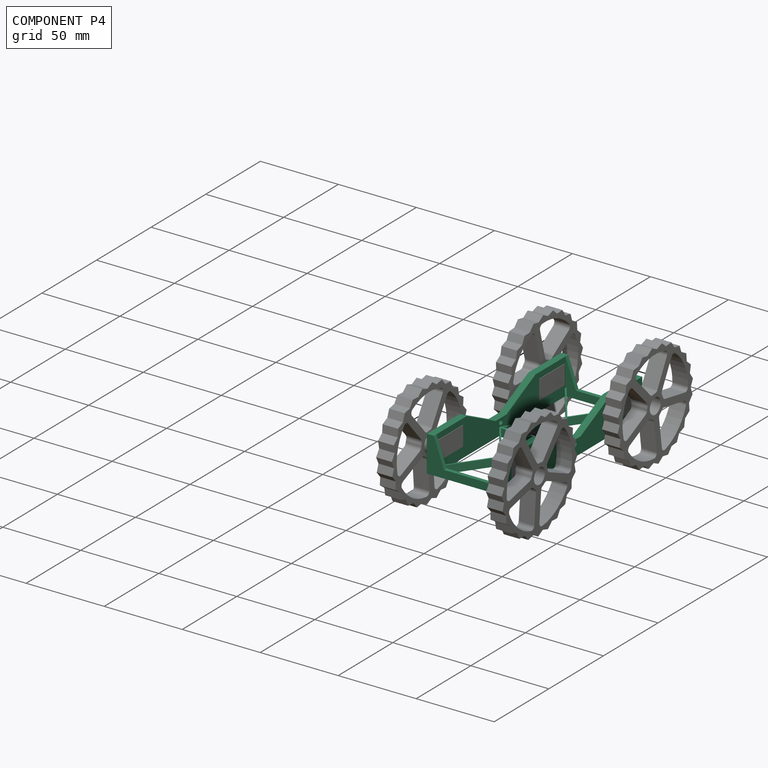
[diagram: component P4 — assembled]
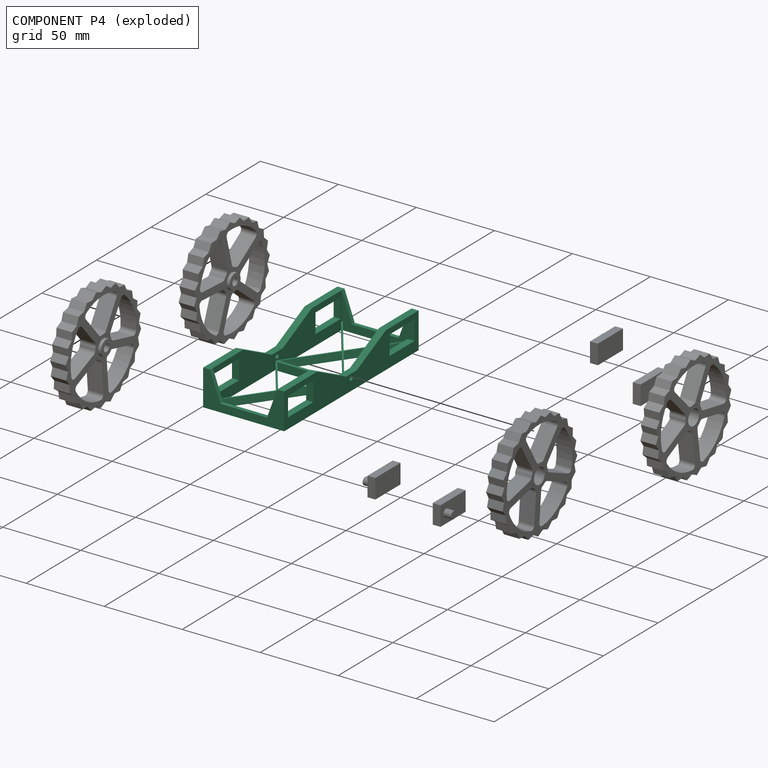
[diagram: component P4 — exploded]
COMPONENT P4 — recipe-attached (CADFS 00729822, mesh-verified: the recipe's output STEP matches this component's geometry to below the mesh-comparison resolution (tessellation chordal tolerance ~0.203 mm)).
Held by: FASTENED mate "Fastened 4" to P3; FASTENED mate "Fastened 1" to P2; FASTENED mate "Fastened 3" to P7; FASTENED mate "Fastened 2" to P1.
Construction recipe (FeatureScript — the CAD program that rebuilds this solid; sketch coordinates are in the units given by the * unit suffixes, e.g. mm):

FeatureScript 1511;
import(path : "onshape/std/geometry.fs", version : "1511.0");
import(path : "onshape/std/common.fs", version : "1511.0");
const mm = millimeter;
const VERTEX = EntityType.VERTEX;
const EDGE = EntityType.EDGE;
const FACE = EntityType.FACE;
const BODY = EntityType.BODY;
function v(x, y){return vector(x, y);}
function OD(order){return orderDisambiguation(order);}
function OSD(set){return originalSetDisambiguation(set);}
function TD(topology){return topologyDisambiguation(topology);}
function TDD(query){return trueDependencyDisambiguation(query);}
function sQuery(a, b, c) {return sketchEntityQuery(a, b, c);}

annotation { "Feature Type Name" : "Feature", "Feature Type Description" : "" }
export const myFeature = defineFeature(function(context is Context, id is Id, definition is map)
    precondition{}
    {
        {
            var Q0;
            Q0=qCreatedBy(makeId("Top.planeOp"),FACE);
            var sketch = newSketch(context, id + "F0", { "sketchPlane" : qUnion([Q0])});
            skLineSegment(sketch, "E0.bottom", {"start": v(21.5, 60) * mm, "end": v(-21.5, 60) * mm});
            skLineSegment(sketch, "E0.top", {"start": v(21.5, -60) * mm, "end": v(-21.5, -60) * mm});
            skLineSegment(sketch, "E0.left", {"start": v(21.5, 60) * mm, "end": v(21.5, -60) * mm});
            skLineSegment(sketch, "E0.right", {"start": v(-21.5, 60) * mm, "end": v(-21.5, -60) * mm});
            skPoint(sketch, "E0.middle", {"position": v(0, 0) * mm});
            skLineSegment(sketch, "E1.bottom", {"start": v(23, 61.5) * mm, "end": v(-23, 61.5) * mm});
            skLineSegment(sketch, "E1.top", {"start": v(23, -61.5) * mm, "end": v(-23, -61.5) * mm});
            skLineSegment(sketch, "E1.left", {"start": v(23, 61.5) * mm, "end": v(23, -61.5) * mm});
            skLineSegment(sketch, "E1.right", {"start": v(-23, 61.5) * mm, "end": v(-23, -61.5) * mm});
            skLineSegment(sketch, "E2", {"start": v(-21.5, 0) * mm, "end": v(21.5, 60) * mm});
            skLineSegment(sketch, "E3", {"start": v(-21.5, 0) * mm, "end": v(21.5, -60) * mm});
            skLineSegment(sketch, "E4", {"start": v(-21.5, -60) * mm, "end": v(21.5, 0) * mm});
            skLineSegment(sketch, "E5", {"start": v(-21.5, 60) * mm, "end": v(21.5, 0) * mm});
            skLineSegment(sketch, "E6", {"start": v(-21.5, 0) * mm, "end": v(21.5, 0) * mm});
            skLineSegment(sketch, "E7.0", {"start": v(-22.31, -0.58) * mm, "end": v(20.69, -60.58) * mm});
            skLineSegment(sketch, "E8.0", {"start": v(-20.69, -60.58) * mm, "end": v(22.31, -0.58) * mm});
            skLineSegment(sketch, "E9.0", {"start": v(-21.5, -1) * mm, "end": v(21.5, -1) * mm});
            skLineSegment(sketch, "E10.0", {"start": v(-22.31, 59.42) * mm, "end": v(20.69, -0.58) * mm});
            skLineSegment(sketch, "E11.0", {"start": v(-20.69, -0.58) * mm, "end": v(22.31, 59.42) * mm});
            skSolve(sketch);
        }
        {
            var Q0;
            {var subQ2=sQuery(id+"F0.wireOp",EDGE,"E0.bottom");Q0=makeQuery(id+"F0.imprint","IMPRINT",FACE,{"disambiguationData":[TD([[makeQuery(id+"F0.imprint","IMPRINT",EDGE,{"derivedFrom":subQ2}),-1.0]])]});}
            var Q1;
            {var subQ1=sQuery(id+"F0.wireOp",EDGE,"E2");var subQ3=sQuery(id+"F0.wireOp",EDGE,"E10.0");var subQ4=makeQuery(id+"F0.imprint","INTERSECT",VERTEX,{"derivedFrom":[subQ1,subQ3]});Q1=makeQuery(id+"F0.imprint","IMPRINT",FACE,{"disambiguationData":[TD([[makeQuery(id+"F0.imprint","IMPRINT",EDGE,{"disambiguationData":[TD([[subQ4,-1.0]])],"derivedFrom":subQ3}),-1.0]])]});}
            var Q2;
            {var subQ0=sQuery(id+"F0.wireOp",EDGE,"E6");var subQ3=makeQuery(id+"F0.imprint","INTERSECT",VERTEX,{"derivedFrom":[subQ0,sQuery(id+"F0.wireOp",EDGE,"E11.0")]});Q2=makeQuery(id+"F0.imprint","IMPRINT",FACE,{"disambiguationData":[TD([[makeQuery(id+"F0.imprint","IMPRINT",EDGE,{"disambiguationData":[TD([[subQ3,-1.0]])],"derivedFrom":subQ0}),-1.0]])]});}
            var Q3;
            {var subQ1=sQuery(id+"F0.wireOp",EDGE,"E0.right");var subQ7=sQuery(id+"F0.wireOp",EDGE,"E9.0");var subQ9=makeQuery(id+"F0.imprint","INTERSECT",VERTEX,{"derivedFrom":[subQ1,subQ7]});Q3=makeQuery(id+"F0.imprint","IMPRINT",FACE,{"disambiguationData":[TD([[makeQuery(id+"F0.imprint","IMPRINT",EDGE,{"disambiguationData":[TD([[subQ9,-1.0]])],"derivedFrom":subQ1}),1.0]])]});}
            var Q4;
            {var subQ1=sQuery(id+"F0.wireOp",EDGE,"E0.left");var subQ5=sQuery(id+"F0.wireOp",EDGE,"E9.0");var subQ6=makeQuery(id+"F0.imprint","INTERSECT",VERTEX,{"derivedFrom":[subQ1,subQ5]});Q4=makeQuery(id+"F0.imprint","IMPRINT",FACE,{"disambiguationData":[TD([[makeQuery(id+"F0.imprint","IMPRINT",EDGE,{"disambiguationData":[TD([[subQ6,-1.0]])],"derivedFrom":subQ1}),-1.0]])]});}
            var Q5;
            {var subQ0=sQuery(id+"F0.wireOp",EDGE,"E4");var subQ5=sQuery(id+"F0.wireOp",EDGE,"E7.0");var subQ7=makeQuery(id+"F0.imprint","INTERSECT",VERTEX,{"derivedFrom":[subQ0,subQ5]});Q5=makeQuery(id+"F0.imprint","IMPRINT",FACE,{"disambiguationData":[TD([[makeQuery(id+"F0.imprint","IMPRINT",EDGE,{"disambiguationData":[TD([[subQ7,-1.0]])],"derivedFrom":subQ5}),-1.0]])]});}
            var Q6;
            {var subQ1=sQuery(id+"F0.wireOp",EDGE,"E0.top");var subQ3=sQuery(id+"F0.wireOp",EDGE,"E7.0");var subQ4=makeQuery(id+"F0.imprint","INTERSECT",VERTEX,{"derivedFrom":[subQ1,subQ3]});Q6=makeQuery(id+"F0.imprint","IMPRINT",FACE,{"disambiguationData":[TD([[makeQuery(id+"F0.imprint","IMPRINT",EDGE,{"disambiguationData":[TD([[subQ4,1.0]])],"derivedFrom":subQ3}),1.0]])]});}
            var Q7;
            {var subQ0=sQuery(id+"F0.wireOp",EDGE,"E4");var subQ1=sQuery(id+"F0.wireOp",EDGE,"E3");var subQ2=makeQuery(id+"F0.imprint","INTERSECT",VERTEX,{"derivedFrom":[subQ1,subQ0]});Q7=makeQuery(id+"F0.imprint","IMPRINT",FACE,{"disambiguationData":[TD([[makeQuery(id+"F0.imprint","IMPRINT",EDGE,{"disambiguationData":[TD([[subQ2,-1.0]])],"derivedFrom":subQ1}),-1.0]])]});}
            var Q8;
            {var subQ0=sQuery(id+"F0.wireOp",EDGE,"E6");var subQ5=sQuery(id+"F0.wireOp",EDGE,"E10.0");var subQ6=makeQuery(id+"F0.imprint","INTERSECT",VERTEX,{"derivedFrom":[subQ0,subQ5]});Q8=makeQuery(id+"F0.imprint","IMPRINT",FACE,{"disambiguationData":[TD([[makeQuery(id+"F0.imprint","IMPRINT",EDGE,{"disambiguationData":[TD([[subQ6,1.0]])],"derivedFrom":subQ5}),1.0]])]});}
            var Q9;
            {var subQ1=sQuery(id+"F0.wireOp",EDGE,"E0.left");var subQ3=sQuery(id+"F0.wireOp",EDGE,"E9.0");var subQ4=makeQuery(id+"F0.imprint","INTERSECT",VERTEX,{"derivedFrom":[subQ1,subQ3]});Q9=makeQuery(id+"F0.imprint","IMPRINT",FACE,{"disambiguationData":[TD([[makeQuery(id+"F0.imprint","IMPRINT",EDGE,{"disambiguationData":[TD([[subQ4,1.0]])],"derivedFrom":subQ3}),1.0]])]});}
            var Q10;
            {var subQ1=sQuery(id+"F0.wireOp",EDGE,"E0.right");var subQ3=sQuery(id+"F0.wireOp",EDGE,"E9.0");var subQ4=makeQuery(id+"F0.imprint","INTERSECT",VERTEX,{"derivedFrom":[subQ1,subQ3]});Q10=makeQuery(id+"F0.imprint","IMPRINT",FACE,{"disambiguationData":[TD([[makeQuery(id+"F0.imprint","IMPRINT",EDGE,{"disambiguationData":[TD([[subQ4,-1.0]])],"derivedFrom":subQ3}),1.0]])]});}
            var Q11;
            {var subQ0=sQuery(id+"F0.wireOp",EDGE,"E10.0");var subQ1=sQuery(id+"F0.wireOp",EDGE,"E2");var subQ2=makeQuery(id+"F0.imprint","INTERSECT",VERTEX,{"derivedFrom":[subQ1,subQ0]});Q11=makeQuery(id+"F0.imprint","IMPRINT",FACE,{"disambiguationData":[TD([[makeQuery(id+"F0.imprint","IMPRINT",EDGE,{"disambiguationData":[TD([[subQ2,-1.0]])],"derivedFrom":subQ1}),-1.0]])]});}
            var Q12;
            {var subQ0=sQuery(id+"F0.wireOp",EDGE,"E2");var subQ5=sQuery(id+"F0.wireOp",EDGE,"E5");var subQ7=makeQuery(id+"F0.imprint","INTERSECT",VERTEX,{"derivedFrom":[subQ0,subQ5]});Q12=makeQuery(id+"F0.imprint","IMPRINT",FACE,{"disambiguationData":[TD([[makeQuery(id+"F0.imprint","IMPRINT",EDGE,{"disambiguationData":[TD([[subQ7,-1.0]])],"derivedFrom":subQ5}),1.0]])]});}
            var Q13;
            {var subQ3=sQuery(id+"F0.wireOp",EDGE,"E10.0");var subQ5=sQuery(id+"F0.wireOp",EDGE,"E2");var subQ6=makeQuery(id+"F0.imprint","INTERSECT",VERTEX,{"derivedFrom":[subQ5,subQ3]});Q13=makeQuery(id+"F0.imprint","IMPRINT",FACE,{"disambiguationData":[TD([[makeQuery(id+"F0.imprint","IMPRINT",EDGE,{"disambiguationData":[TD([[subQ6,-1.0]])],"derivedFrom":subQ5}),1.0]])]});}
            extrude(context, id + "F1", {"entities" : qUnion([Q0, Q1, Q2, Q3, Q4, Q5, Q6, Q7, Q8, Q9, Q10, Q11, Q12, Q13]), "depth" : 5 * mm, "offsetDistance" : 25 * mm});
        }
        {
            var Q0;
            Q0=makeQuery(id+"F1.opExtrude","SWEPT_FACE",FACE,{"disambiguationData":[OSD([sQuery(id+"F0.wireOp",EDGE,"E1.right")])]});
            var sketch = newSketch(context, id + "F2", { "sketchPlane" : qUnion([Q0])});
            skLineSegment(sketch, "E12.bottom", {"start": v(-61.5, 5) * mm, "end": v(-31.5, 5) * mm});
            skLineSegment(sketch, "E12.top", {"start": v(-61.5, 23) * mm, "end": v(-31.5, 23) * mm});
            skLineSegment(sketch, "E12.left", {"start": v(-61.5, 5) * mm, "end": v(-61.5, 23) * mm});
            skLineSegment(sketch, "E12.right", {"start": v(-31.5, 5) * mm, "end": v(-31.5, 23) * mm});
            skLineSegment(sketch, "E13.bottom", {"start": v(61.5, 5) * mm, "end": v(31.5, 5) * mm});
            skLineSegment(sketch, "E13.top", {"start": v(61.5, 23) * mm, "end": v(31.5, 23) * mm});
            skLineSegment(sketch, "E13.left", {"start": v(61.5, 5) * mm, "end": v(61.5, 23) * mm});
            skLineSegment(sketch, "E13.right", {"start": v(31.5, 5) * mm, "end": v(31.5, 23) * mm});
            skSolve(sketch);
        }
        {
            var Q0;
            Q0 = qSketchRegion(id + "F2", true);
            extrude(context, id + "F3", {"entities" : qUnion([Q0]), "operationType" : NewBodyOperationType.ADD, "oppositeDirection" : true, "depth" : 46 * mm, "offsetDistance" : 25 * mm});
        }
        {
            var Q0;
            Q0=makeQuery(id+"F3.opExtrude","SWEPT_FACE",FACE,{"disambiguationData":[OSD([sQuery(id+"F2.wireOp",EDGE,"E12.top")])]});
            var sketch = newSketch(context, id + "F4", { "sketchPlane" : qUnion([Q0])});
            skLineSegment(sketch, "E14.bottom", {"start": v(-21.5, 61.5) * mm, "end": v(21.5, 61.5) * mm});
            skLineSegment(sketch, "E14.top", {"start": v(-21.5, 31.5) * mm, "end": v(21.5, 31.5) * mm});
            skLineSegment(sketch, "E14.left", {"start": v(-21.5, 61.5) * mm, "end": v(-21.5, 31.5) * mm});
            skLineSegment(sketch, "E14.right", {"start": v(21.5, 61.5) * mm, "end": v(21.5, 31.5) * mm});
            skLineSegment(sketch, "E15.bottom", {"start": v(-21.5, -61.5) * mm, "end": v(21.5, -61.5) * mm});
            skLineSegment(sketch, "E15.top", {"start": v(-21.5, -31.5) * mm, "end": v(21.5, -31.5) * mm});
            skLineSegment(sketch, "E15.left", {"start": v(-21.5, -61.5) * mm, "end": v(-21.5, -31.5) * mm});
            skLineSegment(sketch, "E15.right", {"start": v(21.5, -61.5) * mm, "end": v(21.5, -31.5) * mm});
            skSolve(sketch);
        }
        {
            var Q0;
            Q0 = qSketchRegion(id + "F4", true);
            extrude(context, id + "F5", {"entities" : qUnion([Q0]), "operationType" : NewBodyOperationType.REMOVE, "oppositeDirection" : true, "depth" : 18 * mm, "offsetDistance" : 25 * mm});
        }
        {
            var Q0;
            Q0=makeQuery(id+"F3.boolean.opBoolean","MERGE",FACE,{"derivedFrom":[makeQuery(id+"F1.opExtrude","SWEPT_FACE",FACE,{"disambiguationData":[OSD([sQuery(id+"F0.wireOp",EDGE,"E1.right")])]}),makeQuery(id+"F3.opExtrude","CAP_FACE",FACE,{"disambiguationData":[OSD([sQuery(id+"F2.wireOp",EDGE,"E12.bottom"),sQuery(id+"F2.wireOp",EDGE,"E12.top"),sQuery(id+"F2.wireOp",EDGE,"E12.left"),sQuery(id+"F2.wireOp",EDGE,"E12.right")])],"isStart":true}),makeQuery(id+"F3.opExtrude","CAP_FACE",FACE,{"disambiguationData":[OSD([sQuery(id+"F2.wireOp",EDGE,"E13.bottom"),sQuery(id+"F2.wireOp",EDGE,"E13.top"),sQuery(id+"F2.wireOp",EDGE,"E13.left"),sQuery(id+"F2.wireOp",EDGE,"E13.right")])],"isStart":true})]});
            var sketch = newSketch(context, id + "F6", { "sketchPlane" : qUnion([Q0])});
            skLineSegment(sketch, "E16.bottom", {"start": v(-58, 19.25) * mm, "end": v(-35, 19.25) * mm});
            skLineSegment(sketch, "E16.top", {"start": v(-58, 6.75) * mm, "end": v(-35, 6.75) * mm});
            skLineSegment(sketch, "E16.left", {"start": v(-58, 19.25) * mm, "end": v(-58, 6.75) * mm});
            skLineSegment(sketch, "E16.right", {"start": v(-35, 19.25) * mm, "end": v(-35, 6.75) * mm});
            skLineSegment(sketch, "E17.bottom", {"start": v(35, 19.25) * mm, "end": v(58, 19.25) * mm});
            skLineSegment(sketch, "E17.top", {"start": v(35, 6.75) * mm, "end": v(58, 6.75) * mm});
            skLineSegment(sketch, "E17.left", {"start": v(35, 19.25) * mm, "end": v(35, 6.75) * mm});
            skLineSegment(sketch, "E17.right", {"start": v(58, 19.25) * mm, "end": v(58, 6.75) * mm});
            skSolve(sketch);
        }
        {
            var Q0;
            Q0 = qSketchRegion(id + "F6", true);
            extrude(context, id + "F7", {"entities" : qUnion([Q0]), "operationType" : NewBodyOperationType.REMOVE, "endBound" : BoundingType.THROUGH_ALL, "oppositeDirection" : true, "depth" : 25 * mm, "offsetDistance" : 25 * mm});
        }
        {
            var Q0;
            Q0=makeQuery(id+"F3.boolean.opBoolean","MERGE",FACE,{"derivedFrom":[makeQuery(id+"F1.opExtrude","SWEPT_FACE",FACE,{"disambiguationData":[OSD([sQuery(id+"F0.wireOp",EDGE,"E1.right")])]}),makeQuery(id+"F3.opExtrude","CAP_FACE",FACE,{"disambiguationData":[OSD([sQuery(id+"F2.wireOp",EDGE,"E12.bottom"),sQuery(id+"F2.wireOp",EDGE,"E12.top"),sQuery(id+"F2.wireOp",EDGE,"E12.left"),sQuery(id+"F2.wireOp",EDGE,"E12.right")])],"isStart":true}),makeQuery(id+"F3.opExtrude","CAP_FACE",FACE,{"disambiguationData":[OSD([sQuery(id+"F2.wireOp",EDGE,"E13.bottom"),sQuery(id+"F2.wireOp",EDGE,"E13.top"),sQuery(id+"F2.wireOp",EDGE,"E13.left"),sQuery(id+"F2.wireOp",EDGE,"E13.right")])],"isStart":true})]});
            extrude(context, id + "F8", {"entities" : qUnion([Q0]), "operationType" : NewBodyOperationType.ADD, "depth" : 1 * mm, "offsetDistance" : 25 * mm});
        }
        {
            var Q0;
            Q0=makeQuery(id+"F3.boolean.opBoolean","MERGE",FACE,{"derivedFrom":[makeQuery(id+"F1.opExtrude","SWEPT_FACE",FACE,{"disambiguationData":[OSD([sQuery(id+"F0.wireOp",EDGE,"E1.left")])]}),makeQuery(id+"F3.opExtrude","CAP_FACE",FACE,{"disambiguationData":[OSD([sQuery(id+"F2.wireOp",EDGE,"E12.bottom"),sQuery(id+"F2.wireOp",EDGE,"E12.top"),sQuery(id+"F2.wireOp",EDGE,"E12.left"),sQuery(id+"F2.wireOp",EDGE,"E12.right")])],"isStart":false}),makeQuery(id+"F3.opExtrude","CAP_FACE",FACE,{"disambiguationData":[OSD([sQuery(id+"F2.wireOp",EDGE,"E13.bottom"),sQuery(id+"F2.wireOp",EDGE,"E13.top"),sQuery(id+"F2.wireOp",EDGE,"E13.left"),sQuery(id+"F2.wireOp",EDGE,"E13.right")])],"isStart":false})]});
            extrude(context, id + "F9", {"entities" : qUnion([Q0]), "operationType" : NewBodyOperationType.ADD, "depth" : 1 * mm, "offsetDistance" : 25 * mm});
        }
        {
            var Q0;
            Q0=makeQuery(id+"F8.opExtrude","CAP_FACE",FACE,{"disambiguationData":[OSD([sQuery(id+"F0.wireOp",EDGE,"E1.right"),sQuery(id+"F2.wireOp",EDGE,"E12.bottom"),sQuery(id+"F2.wireOp",EDGE,"E12.top"),sQuery(id+"F2.wireOp",EDGE,"E12.left"),sQuery(id+"F2.wireOp",EDGE,"E12.right"),sQuery(id+"F2.wireOp",EDGE,"E13.bottom"),sQuery(id+"F2.wireOp",EDGE,"E13.top"),sQuery(id+"F2.wireOp",EDGE,"E13.left"),sQuery(id+"F2.wireOp",EDGE,"E13.right")])],"isStart":false});
            var sketch = newSketch(context, id + "F10", { "sketchPlane" : qUnion([Q0])});
            skLineSegment(sketch, "E18.bottom", {"start": v(5, 0) * mm, "end": v(-5, 0) * mm});
            skLineSegment(sketch, "E18.top", {"start": v(5, 10) * mm, "end": v(-5, 10) * mm});
            skLineSegment(sketch, "E18.left", {"start": v(5, 0) * mm, "end": v(5, 10) * mm});
            skLineSegment(sketch, "E18.right", {"start": v(-5, 0) * mm, "end": v(-5, 10) * mm});
            skPoint(sketch, "E18.middle", {"position": v(0, 5) * mm});
            skSolve(sketch);
        }
        {
            var Q0;
            Q0 = qSketchRegion(id + "F10", true);
            extrude(context, id + "F11", {"entities" : qUnion([Q0]), "operationType" : NewBodyOperationType.ADD, "oppositeDirection" : true, "depth" : 2.5 * mm, "offsetDistance" : 25 * mm});
        }
        {
            var Q0;
            Q0=makeQuery(id+"F9.opExtrude","CAP_FACE",FACE,{"disambiguationData":[OSD([sQuery(id+"F0.wireOp",EDGE,"E1.left"),sQuery(id+"F2.wireOp",EDGE,"E12.bottom"),sQuery(id+"F2.wireOp",EDGE,"E12.top"),sQuery(id+"F2.wireOp",EDGE,"E12.left"),sQuery(id+"F2.wireOp",EDGE,"E12.right"),sQuery(id+"F2.wireOp",EDGE,"E13.bottom"),sQuery(id+"F2.wireOp",EDGE,"E13.top"),sQuery(id+"F2.wireOp",EDGE,"E13.left"),sQuery(id+"F2.wireOp",EDGE,"E13.right")])],"isStart":false});
            var sketch = newSketch(context, id + "F12", { "sketchPlane" : qUnion([Q0])});
            skLineSegment(sketch, "E19.bottom", {"start": v(-5, 0) * mm, "end": v(5, 0) * mm});
            skLineSegment(sketch, "E19.top", {"start": v(-5, 10) * mm, "end": v(5, 10) * mm});
            skLineSegment(sketch, "E19.left", {"start": v(-5, 0) * mm, "end": v(-5, 10) * mm});
            skLineSegment(sketch, "E19.right", {"start": v(5, 0) * mm, "end": v(5, 10) * mm});
            skPoint(sketch, "E19.middle", {"position": v(0, 5) * mm});
            skSolve(sketch);
        }
        {
            var Q0;
            Q0 = qSketchRegion(id + "F12", true);
            extrude(context, id + "F13", {"entities" : qUnion([Q0]), "operationType" : NewBodyOperationType.ADD, "oppositeDirection" : true, "depth" : 2.5 * mm, "offsetDistance" : 25 * mm});
        }
        {
            var Q0;
            Q0=makeQuery(id+"F13.boolean.opBoolean","MERGE",FACE,{"derivedFrom":[makeQuery(id+"F9.opExtrude","CAP_FACE",FACE,{"disambiguationData":[OSD([sQuery(id+"F0.wireOp",EDGE,"E1.left"),sQuery(id+"F2.wireOp",EDGE,"E12.bottom"),sQuery(id+"F2.wireOp",EDGE,"E12.top"),sQuery(id+"F2.wireOp",EDGE,"E12.left"),sQuery(id+"F2.wireOp",EDGE,"E12.right"),sQuery(id+"F2.wireOp",EDGE,"E13.bottom"),sQuery(id+"F2.wireOp",EDGE,"E13.top"),sQuery(id+"F2.wireOp",EDGE,"E13.left"),sQuery(id+"F2.wireOp",EDGE,"E13.right")])],"isStart":false}),makeQuery(id+"F13.opExtrude","CAP_FACE",FACE,{"disambiguationData":[OSD([sQuery(id+"F12.wireOp",EDGE,"E19.bottom"),sQuery(id+"F12.wireOp",EDGE,"E19.top"),sQuery(id+"F12.wireOp",EDGE,"E19.left"),sQuery(id+"F12.wireOp",EDGE,"E19.right")])],"isStart":true})]});
            var sketch = newSketch(context, id + "F14", { "sketchPlane" : qUnion([Q0])});
            skCircle(sketch, "E20", {"center": v(0, 7.5) * mm, "radius": 1.6 * mm});
            skPoint(sketch, "E20.centerSnap0", {"position": v(-5, 7.5) * mm});
            skPoint(sketch, "E20.centerSnap1", {"position": v(0, 10) * mm});
            skSolve(sketch);
        }
        {
            var Q0;
            Q0 = qSketchRegion(id + "F14", true);
            extrude(context, id + "F15", {"entities" : qUnion([Q0]), "operationType" : NewBodyOperationType.REMOVE, "endBound" : BoundingType.THROUGH_ALL, "oppositeDirection" : true, "depth" : 25 * mm, "offsetDistance" : 25 * mm});
        }
        {
            var Q0;
            Q0=makeQuery(id+"F13.boolean.opBoolean","MERGE",FACE,{"derivedFrom":[makeQuery(id+"F9.opExtrude","CAP_FACE",FACE,{"disambiguationData":[OSD([sQuery(id+"F0.wireOp",EDGE,"E1.left"),sQuery(id+"F2.wireOp",EDGE,"E12.bottom"),sQuery(id+"F2.wireOp",EDGE,"E12.top"),sQuery(id+"F2.wireOp",EDGE,"E12.left"),sQuery(id+"F2.wireOp",EDGE,"E12.right"),sQuery(id+"F2.wireOp",EDGE,"E13.bottom"),sQuery(id+"F2.wireOp",EDGE,"E13.top"),sQuery(id+"F2.wireOp",EDGE,"E13.left"),sQuery(id+"F2.wireOp",EDGE,"E13.right")])],"isStart":false}),makeQuery(id+"F13.opExtrude","CAP_FACE",FACE,{"disambiguationData":[OSD([sQuery(id+"F12.wireOp",EDGE,"E19.bottom"),sQuery(id+"F12.wireOp",EDGE,"E19.top"),sQuery(id+"F12.wireOp",EDGE,"E19.left"),sQuery(id+"F12.wireOp",EDGE,"E19.right")])],"isStart":true})]});
            extrude(context, id + "F16", {"entities" : qUnion([Q0]), "operationType" : NewBodyOperationType.ADD, "depth" : 2 * mm, "offsetDistance" : 25 * mm});
        }
        {
            var Q0;
            Q0=makeQuery(id+"F10.imprint","IMPRINT",FACE,{"disambiguationData":[TD([[makeQuery(id+"F10.imprint","IMPRINT",EDGE,{"derivedFrom":makeQuery(id+"F8.opExtrude","CAP_EDGE",EDGE,{"disambiguationData":[OSD([sQuery(id+"F2.wireOp",EDGE,"E12.top")])],"isStart":false})}),-1.0]])]});
            var Q1;
            Q1=makeQuery(id+"F11.boolean.opBoolean","MERGE",FACE,{"derivedFrom":[makeQuery(id+"F8.opExtrude","CAP_FACE",FACE,{"disambiguationData":[OSD([sQuery(id+"F0.wireOp",EDGE,"E1.right"),sQuery(id+"F2.wireOp",EDGE,"E12.bottom"),sQuery(id+"F2.wireOp",EDGE,"E12.top"),sQuery(id+"F2.wireOp",EDGE,"E12.left"),sQuery(id+"F2.wireOp",EDGE,"E12.right"),sQuery(id+"F2.wireOp",EDGE,"E13.bottom"),sQuery(id+"F2.wireOp",EDGE,"E13.top"),sQuery(id+"F2.wireOp",EDGE,"E13.left"),sQuery(id+"F2.wireOp",EDGE,"E13.right")])],"isStart":false}),makeQuery(id+"F11.opExtrude","CAP_FACE",FACE,{"disambiguationData":[OSD([sQuery(id+"F10.wireOp",EDGE,"E18.bottom"),sQuery(id+"F10.wireOp",EDGE,"E18.top"),sQuery(id+"F10.wireOp",EDGE,"E18.left"),sQuery(id+"F10.wireOp",EDGE,"E18.right")])],"isStart":true})]});
            extrude(context, id + "F17", {"entities" : qUnion([Q0, Q1]), "operationType" : NewBodyOperationType.ADD, "depth" : 2 * mm, "offsetDistance" : 25 * mm});
        }
        {
            var Q0;
            Q0=makeQuery(id+"F1.opExtrude","SWEPT_FACE",FACE,{"disambiguationData":[OSD([sQuery(id+"F0.wireOp",EDGE,"E0.bottom")])]});
            extrude(context, id + "F18", {"entities" : qUnion([Q0]), "operationType" : NewBodyOperationType.ADD, "depth" : 1 * mm, "offsetDistance" : 25 * mm});
        }
        {
            var Q0;
            Q0=makeQuery(id+"F1.opExtrude","SWEPT_FACE",FACE,{"disambiguationData":[OSD([sQuery(id+"F0.wireOp",EDGE,"E0.top")])]});
            extrude(context, id + "F19", {"entities" : qUnion([Q0]), "operationType" : NewBodyOperationType.ADD, "depth" : 1 * mm, "offsetDistance" : 25 * mm});
        }
        {
            var Q0;
            Q0=makeQuery(id+"F1.opExtrude","SWEPT_FACE",FACE,{"disambiguationData":[OSD([sQuery(id+"F0.wireOp",EDGE,"E9.0")])]});
            extrude(context, id + "F20", {"entities" : qUnion([Q0]), "operationType" : NewBodyOperationType.ADD, "depth" : 1 * mm, "offsetDistance" : 25 * mm});
        }
        {
            var Q0;
            {var subQ0=sQuery(id+"F2.wireOp",EDGE,"E12.left");var subQ1=sQuery(id+"F0.wireOp",EDGE,"E1.right");var subQ2=sQuery(id+"F0.wireOp",EDGE,"E1.bottom");var subQ3=sQuery(id+"F0.wireOp",EDGE,"E1.left");Q0=makeQuery(id+"F17.boolean.opBoolean","MERGE",FACE,{"derivedFrom":[makeQuery(id+"F16.boolean.opBoolean","MERGE",FACE,{"derivedFrom":[makeQuery(id+"F9.boolean.opBoolean","MERGE",FACE,{"derivedFrom":[makeQuery(id+"F8.boolean.opBoolean","MERGE",FACE,{"derivedFrom":[makeQuery(id+"F3.boolean.opBoolean","MERGE",FACE,{"derivedFrom":[makeQuery(id+"F1.opExtrude","SWEPT_FACE",FACE,{"disambiguationData":[OSD([subQ2])]}),makeQuery(id+"F3.opExtrude","SWEPT_FACE",FACE,{"disambiguationData":[OSD([subQ0])]})]}),makeQuery(id+"F8.opExtrude","SWEPT_FACE",FACE,{"disambiguationData":[OSD([subQ2,subQ1,subQ0])]})]}),makeQuery(id+"F9.opExtrude","SWEPT_FACE",FACE,{"disambiguationData":[OSD([subQ2,subQ3,subQ0])]})]}),makeQuery(id+"F16.opExtrude","SWEPT_FACE",FACE,{"disambiguationData":[OSD([subQ2,subQ3,subQ0])]})]}),makeQuery(id+"F17.opExtrude","SWEPT_FACE",FACE,{"disambiguationData":[OSD([subQ2,subQ1,subQ0]),TDD([makeQuery(id+"F10.imprint","IMPRINT",EDGE,{"derivedFrom":makeQuery(id+"F8.opExtrude","CAP_EDGE",EDGE,{"disambiguationData":[OSD([subQ2,subQ1,subQ0])],"isStart":false})})])]})]});}
            var sketch = newSketch(context, id + "F21", { "sketchPlane" : qUnion([Q0])});
            skLineSegment(sketch, "E21", {"start": v(-21.5, 5) * mm, "end": v(-21.5, 23) * mm});
            skLineSegment(sketch, "E22", {"start": v(-21.5, 23) * mm, "end": v(-14.95, 5) * mm});
            skLineSegment(sketch, "E23", {"start": v(21.5, 23) * mm, "end": v(21.5, 5) * mm});
            skLineSegment(sketch, "E24", {"start": v(21.5, 5) * mm, "end": v(14.95, 5) * mm});
            skLineSegment(sketch, "E25", {"start": v(14.95, 5) * mm, "end": v(21.5, 23) * mm});
            skSolve(sketch);
        }
        {
            var Q0;
            {var subQ0=sQuery(id+"F21.wireOp",EDGE,"E21");Q0=makeQuery(id+"F21.imprint","IMPRINT",FACE,{"disambiguationData":[TD([[makeQuery(id+"F21.imprint","IMPRINT",EDGE,{"derivedFrom":subQ0}),-1.0]])]});}
            var Q1;
            Q1=makeQuery(id+"F21.imprint","IMPRINT",FACE,{"disambiguationData":[TD([[makeQuery(id+"F21.imprint","IMPRINT",EDGE,{"derivedFrom":sQuery(id+"F21.wireOp",EDGE,"E23")}),1.0]])]});
            extrude(context, id + "F22", {"entities" : qUnion([Q0, Q1]), "operationType" : NewBodyOperationType.ADD, "oppositeDirection" : true, "depth" : 2.5 * mm, "offsetDistance" : 25 * mm});
        }
        {
            var Q0;
            {var subQ0=sQuery(id+"F2.wireOp",EDGE,"E13.left");var subQ1=sQuery(id+"F0.wireOp",EDGE,"E1.right");var subQ2=sQuery(id+"F0.wireOp",EDGE,"E1.top");var subQ3=sQuery(id+"F0.wireOp",EDGE,"E1.left");Q0=makeQuery(id+"F17.boolean.opBoolean","MERGE",FACE,{"derivedFrom":[makeQuery(id+"F16.boolean.opBoolean","MERGE",FACE,{"derivedFrom":[makeQuery(id+"F9.boolean.opBoolean","MERGE",FACE,{"derivedFrom":[makeQuery(id+"F8.boolean.opBoolean","MERGE",FACE,{"derivedFrom":[makeQuery(id+"F3.boolean.opBoolean","MERGE",FACE,{"derivedFrom":[makeQuery(id+"F1.opExtrude","SWEPT_FACE",FACE,{"disambiguationData":[OSD([subQ2])]}),makeQuery(id+"F3.opExtrude","SWEPT_FACE",FACE,{"disambiguationData":[OSD([subQ0])]})]}),makeQuery(id+"F8.opExtrude","SWEPT_FACE",FACE,{"disambiguationData":[OSD([subQ2,subQ1,subQ0])]})]}),makeQuery(id+"F9.opExtrude","SWEPT_FACE",FACE,{"disambiguationData":[OSD([subQ2,subQ3,subQ0])]})]}),makeQuery(id+"F16.opExtrude","SWEPT_FACE",FACE,{"disambiguationData":[OSD([subQ2,subQ3,subQ0])]})]}),makeQuery(id+"F17.opExtrude","SWEPT_FACE",FACE,{"disambiguationData":[OSD([subQ2,subQ1,subQ0])]})]});}
            var sketch = newSketch(context, id + "F23", { "sketchPlane" : qUnion([Q0])});
            skLineSegment(sketch, "E26", {"start": v(-21.5, 23) * mm, "end": v(-14.95, 5) * mm});
            skLineSegment(sketch, "E27", {"start": v(21.5, 23) * mm, "end": v(14.95, 5) * mm});
            skSolve(sketch);
        }
        {
            var Q0;
            {var subQ0=sQuery(id+"F23.wireOp",EDGE,"E27");Q0=makeQuery(id+"F23.imprint","IMPRINT",FACE,{"disambiguationData":[TD([[makeQuery(id+"F23.imprint","IMPRINT",EDGE,{"derivedFrom":subQ0}),1.0]])]});}
            var Q1;
            {var subQ0=sQuery(id+"F23.wireOp",EDGE,"E26");Q1=makeQuery(id+"F23.imprint","IMPRINT",FACE,{"disambiguationData":[TD([[makeQuery(id+"F23.imprint","IMPRINT",EDGE,{"derivedFrom":subQ0}),-1.0]])]});}
            extrude(context, id + "F24", {"entities" : qUnion([Q0, Q1]), "operationType" : NewBodyOperationType.ADD, "oppositeDirection" : true, "depth" : 2.5 * mm, "offsetDistance" : 25 * mm});
        }
        {
            var Q0;
            {var subQ0=sQuery(id+"F10.wireOp",EDGE,"E18.right");var subQ1=sQuery(id+"F2.wireOp",EDGE,"E12.right");var subQ2=sQuery(id+"F2.wireOp",EDGE,"E12.left");var subQ3=sQuery(id+"F2.wireOp",EDGE,"E12.top");var subQ4=sQuery(id+"F0.wireOp",EDGE,"E1.right");Q0=makeQuery(id+"F17.boolean.opBoolean","MERGE",FACE,{"derivedFrom":[makeQuery(id+"F17.opExtrude","CAP_FACE",FACE,{"disambiguationData":[OSD([sQuery(id+"F0.wireOp",EDGE,"E1.bottom"),subQ4,subQ3,subQ2,subQ1,sQuery(id+"F6.wireOp",EDGE,"E16.bottom"),sQuery(id+"F6.wireOp",EDGE,"E16.top"),sQuery(id+"F6.wireOp",EDGE,"E16.left"),sQuery(id+"F6.wireOp",EDGE,"E16.right"),subQ0])],"isStart":false}),makeQuery(id+"F17.opExtrude","CAP_FACE",FACE,{"disambiguationData":[OSD([subQ4,sQuery(id+"F2.wireOp",EDGE,"E12.bottom"),subQ3,subQ2,subQ1,sQuery(id+"F2.wireOp",EDGE,"E13.bottom"),sQuery(id+"F2.wireOp",EDGE,"E13.top"),sQuery(id+"F2.wireOp",EDGE,"E13.left"),sQuery(id+"F2.wireOp",EDGE,"E13.right"),sQuery(id+"F10.wireOp",EDGE,"E18.bottom"),sQuery(id+"F10.wireOp",EDGE,"E18.top"),sQuery(id+"F10.wireOp",EDGE,"E18.left"),subQ0])],"isStart":false})]});}
            var sketch = newSketch(context, id + "F25", { "sketchPlane" : qUnion([Q0])});
            skLineSegment(sketch, "E28", {"start": v(-31.5, 23) * mm, "end": v(-5, 10) * mm});
            skLineSegment(sketch, "E29", {"start": v(5, 10) * mm, "end": v(31.5, 23) * mm});
            skSolve(sketch);
        }
        {
            var Q0;
            Q0=makeQuery(id+"F25.imprint","IMPRINT",FACE,{"disambiguationData":[TD([[makeQuery(id+"F25.imprint","IMPRINT",EDGE,{"derivedFrom":sQuery(id+"F25.wireOp",EDGE,"E28")}),-1.0]])]});
            var Q1;
            Q1=makeQuery(id+"F25.imprint","IMPRINT",FACE,{"disambiguationData":[TD([[makeQuery(id+"F25.imprint","IMPRINT",EDGE,{"derivedFrom":sQuery(id+"F25.wireOp",EDGE,"E29")}),-1.0]])]});
            extrude(context, id + "F26", {"entities" : qUnion([Q0, Q1]), "operationType" : NewBodyOperationType.ADD, "oppositeDirection" : true, "depth" : 4.5 * mm, "offsetDistance" : 25 * mm});
        }
        {
            var Q0;
            Q0=makeQuery(id+"F16.opExtrude","CAP_FACE",FACE,{"disambiguationData":[OSD([sQuery(id+"F0.wireOp",EDGE,"E1.left"),sQuery(id+"F2.wireOp",EDGE,"E12.bottom"),sQuery(id+"F2.wireOp",EDGE,"E12.top"),sQuery(id+"F2.wireOp",EDGE,"E12.left"),sQuery(id+"F2.wireOp",EDGE,"E12.right"),sQuery(id+"F2.wireOp",EDGE,"E13.bottom"),sQuery(id+"F2.wireOp",EDGE,"E13.top"),sQuery(id+"F2.wireOp",EDGE,"E13.left"),sQuery(id+"F2.wireOp",EDGE,"E13.right"),sQuery(id+"F12.wireOp",EDGE,"E19.bottom"),sQuery(id+"F12.wireOp",EDGE,"E19.top"),sQuery(id+"F12.wireOp",EDGE,"E19.left"),sQuery(id+"F12.wireOp",EDGE,"E19.right")])],"isStart":false});
            var sketch = newSketch(context, id + "F27", { "sketchPlane" : qUnion([Q0])});
            skLineSegment(sketch, "E30", {"start": v(31.5, 23) * mm, "end": v(5, 10) * mm});
            skLineSegment(sketch, "E31", {"start": v(5, 10) * mm, "end": v(-5, 10) * mm});
            skLineSegment(sketch, "E32", {"start": v(-5, 10) * mm, "end": v(-31.5, 23) * mm});
            skSolve(sketch);
        }
        {
            var Q0;
            Q0=makeQuery(id+"F27.imprint","IMPRINT",FACE,{"disambiguationData":[TD([[makeQuery(id+"F27.imprint","IMPRINT",EDGE,{"derivedFrom":sQuery(id+"F27.wireOp",EDGE,"E30")}),1.0]])]});
            var Q1;
            Q1=makeQuery(id+"F27.imprint","IMPRINT",FACE,{"disambiguationData":[TD([[makeQuery(id+"F27.imprint","IMPRINT",EDGE,{"derivedFrom":sQuery(id+"F27.wireOp",EDGE,"E32")}),1.0]])]});
            extrude(context, id + "F28", {"entities" : qUnion([Q0, Q1]), "operationType" : NewBodyOperationType.ADD, "oppositeDirection" : true, "depth" : 4.5 * mm, "offsetDistance" : 25 * mm});
        }
    });
